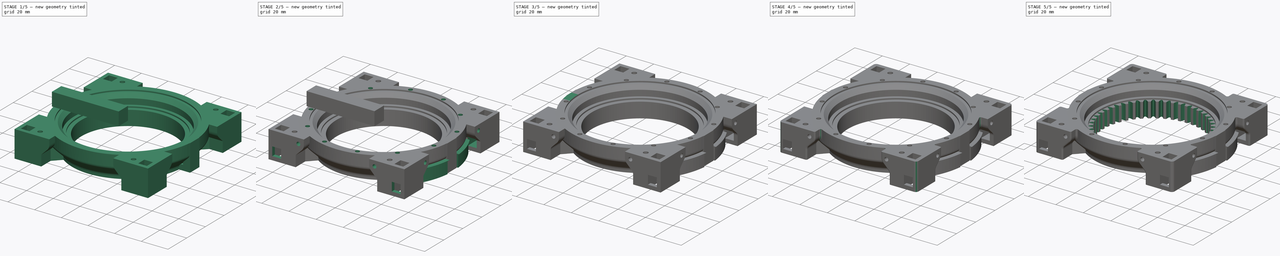
[diagram: build sequence overview — one tinted view per stage of 5, left to right]
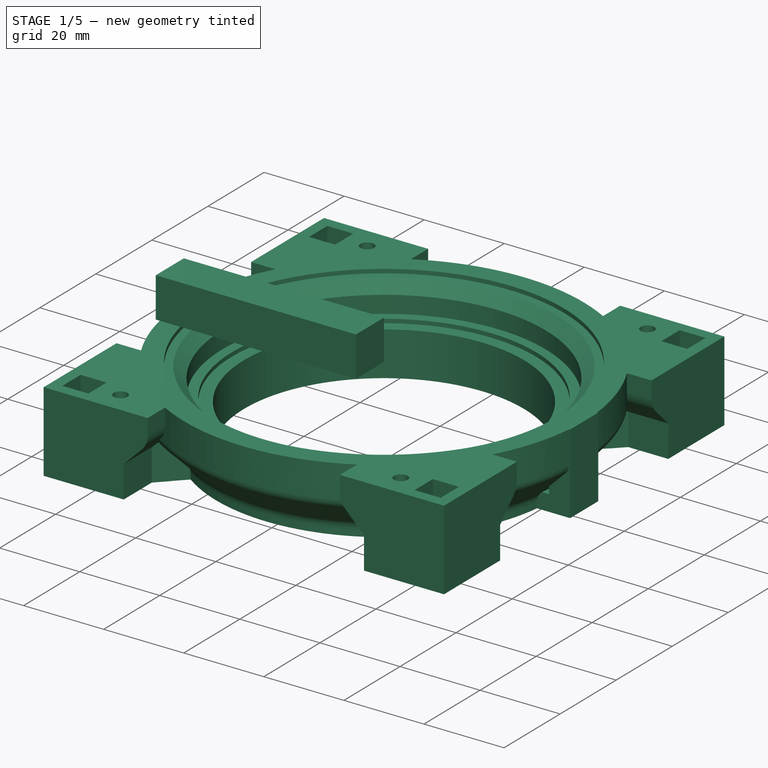
[diagram: stage 1 of 5 — iso view after this stage's code; geometry added in this stage tinted green]
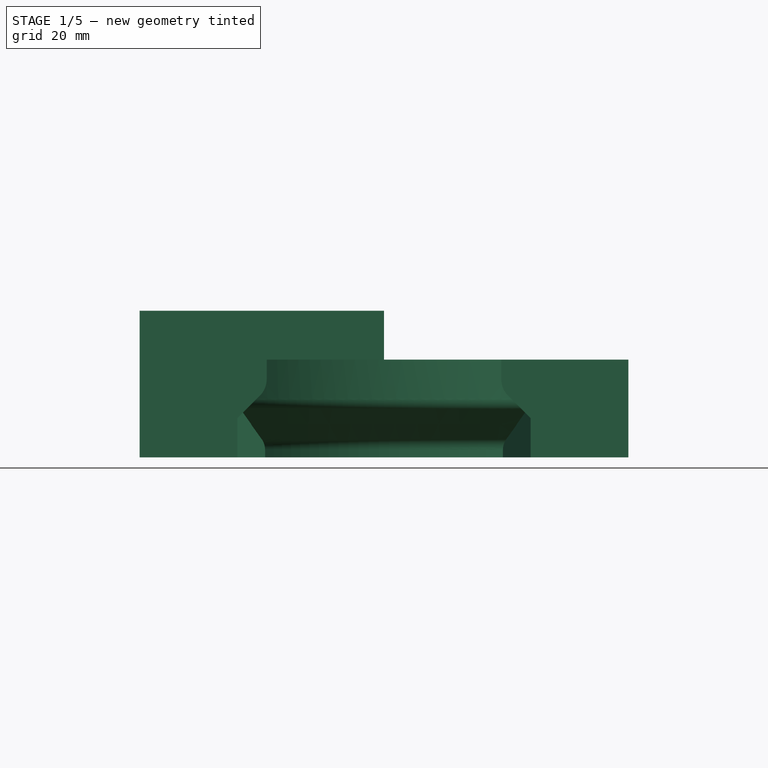
[diagram: stage 1 of 5 — front view after this stage's code; geometry added in this stage tinted green]
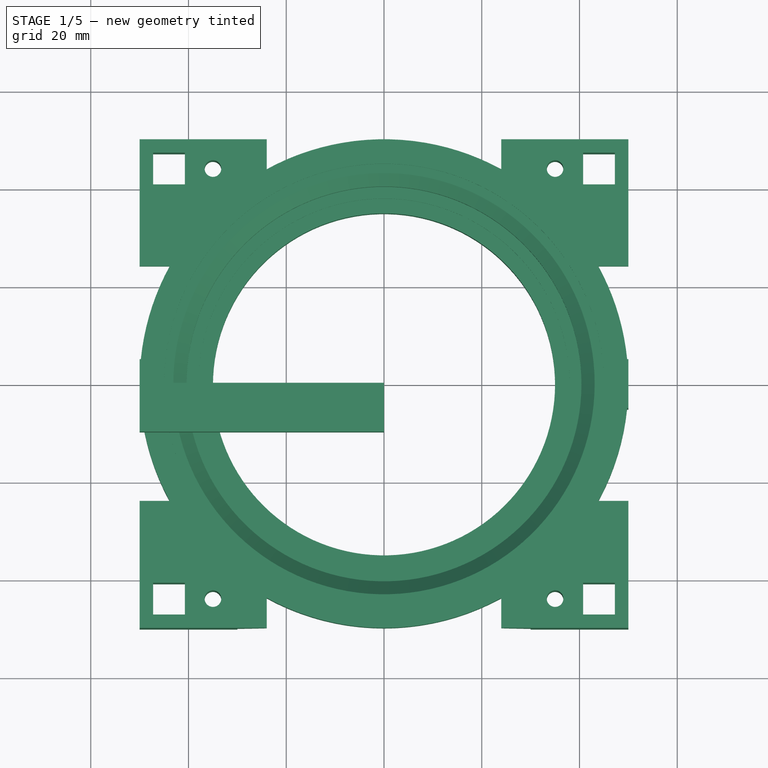
[diagram: stage 1 of 5 — top view after this stage's code; geometry added in this stage tinted green]
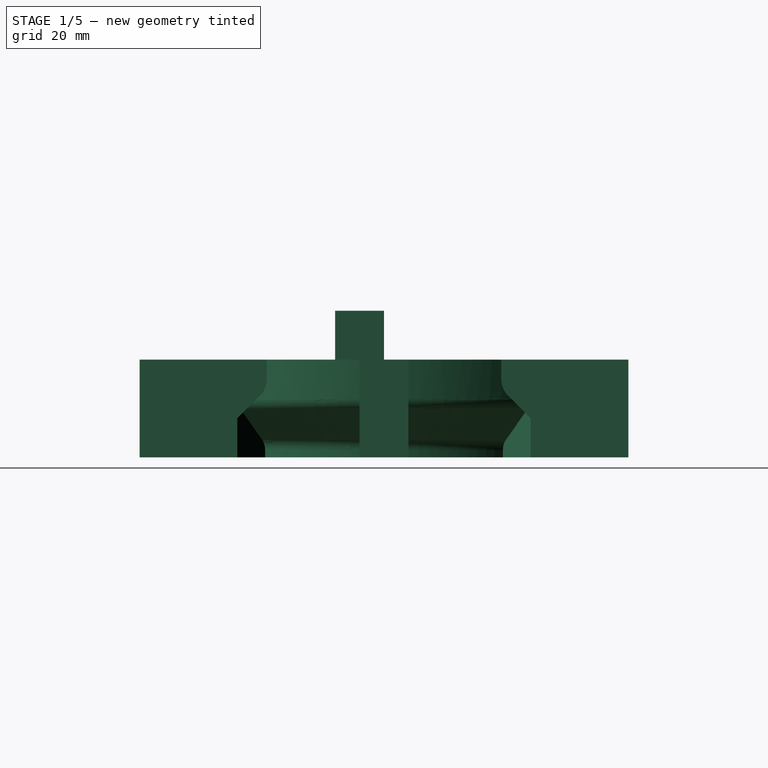
[diagram: stage 1 of 5 — right view after this stage's code; geometry added in this stage tinted green]
FCSTD DOCUMENT  (FreeCAD 0.16R6706 (Git))
Label: RingFixedV2_1
License: All rights reserved
LicenseURL: http://en.wikipedia.org/wiki/All_rights_reserved
objects: PartDesign::Fillet×28, Sketcher::SketchObject×16, PartDesign::Pad×10, PartDesign::PolarPattern×9, PartDesign::Pocket×6, PartDesign::Revolution×1, Part::Part2DObjectPython×1, PartDesign::Mirrored×1, Part::Cut×1
note: 90 computed .brp shape members not serialized (recipe doc carries the construction recipe); baked Part::Feature solids carry a one-line shape summary decoded from their .brp

FEATURE [Sketcher::SketchObject] Sketch013
  Placement = pos=(0,0,0) rot=(1,0,0;1.5708rad)
  sketch-geometry (35):
    g0: LineSegment StartX=35 StartY=9 StartZ=0 EndX=42 EndY=9 EndZ=0
    g1: LineSegment StartX=35 StartY=9 StartZ=0 EndX=35 EndY=20 EndZ=0
    g2: LineSegment StartX=42 StartY=9 StartZ=0 EndX=42 EndY=10.5 EndZ=0
    g3: LineSegment StartX=35 StartY=20 StartZ=0 EndX=38 EndY=20 EndZ=0
    g4: LineSegment StartX=38 StartY=20 StartZ=0 EndX=38 EndY=21 EndZ=0
    g5: LineSegment StartX=38 StartY=21 StartZ=0 EndX=40.4 EndY=21 EndZ=0
    g6: LineSegment StartX=42.8839 StartY=12.6339 StartZ=0 EndX=49.1161 EndY=18.8661 EndZ=0
    g7: LineSegment StartX=40.4 StartY=21 StartZ=0 EndX=40.4 EndY=25.2988 EndZ=0
    g8: LineSegment StartX=40.4 StartY=25.2988 StartZ=0 EndX=43.1012 EndY=28 EndZ=0
    g9: LineSegment StartX=45 StartY=29 StartZ=0 EndX=50 EndY=29 EndZ=0
    g10: LineSegment StartX=50 StartY=29 StartZ=0 EndX=50 EndY=21 EndZ=0
    g11: LineSegment StartX=43.1012 StartY=28 StartZ=0 EndX=45 EndY=28 EndZ=0
    g12: LineSegment StartX=45 StartY=28 StartZ=0 EndX=45 EndY=29 EndZ=0
    g13: Circle [constr] CenterX=40 CenterY=29 CenterZ=0 NormalX=0 NormalY=0 NormalZ=1 Radius=2.9
    g14: LineSegment [constr] StartX=40 StartY=29 StartZ=0 EndX=45 EndY=29 EndZ=0
    g15: Circle CenterX=43.4648 CenterY=25.5352 CenterZ=0 NormalX=0 NormalY=0 NormalZ=1 Radius=0.15
    g16: LineSegment [constr] StartX=42.0506 StartY=26.9494 StartZ=0 EndX=43.4648 EndY=25.5352 EndZ=0
    g17: Circle CenterX=39.5 CenterY=18.5 CenterZ=0 NormalX=0 NormalY=0 NormalZ=1 Radius=0.15
    g18: Circle CenterX=39.5 CenterY=17 CenterZ=0 NormalX=0 NormalY=0 NormalZ=1 Radius=0.15
    g19: Circle CenterX=39.5 CenterY=15.5 CenterZ=0 NormalX=0 NormalY=0 NormalZ=1 Radius=0.15
    g20: LineSegment [constr] StartX=39.5 StartY=21 StartZ=0 EndX=39.5 EndY=9 EndZ=0
    g21: Circle CenterX=39.5 CenterY=14 CenterZ=0 NormalX=0 NormalY=0 NormalZ=1 Radius=0.15
    g22: Circle CenterX=39.5 CenterY=12.5 CenterZ=0 NormalX=0 NormalY=0 NormalZ=1 Radius=0.15
    g23: LineSegment [constr] StartX=0 StartY=0 StartZ=0 EndX=0 EndY=29 EndZ=0
    g24: ArcOfCircle CenterX=46.9822 CenterY=21 CenterZ=0 NormalX=0 NormalY=0 NormalZ=1 Radius=3.01777 StartAngle=5.49779 EndAngle=6.28319
    g25: ArcOfCircle CenterX=45.0178 CenterY=10.5 CenterZ=0 NormalX=0 NormalY=0 NormalZ=1 Radius=3.01777 StartAngle=2.35619 EndAngle=3.14159
    g26: LineSegment [constr] StartX=44.6648 StartY=26.7352 StartZ=0 EndX=42.2648 EndY=24.3352 EndZ=0
    g27: Circle CenterX=42.2648 CenterY=24.3352 CenterZ=0 NormalX=0 NormalY=0 NormalZ=1 Radius=0.15
    g28: Circle CenterX=44.6648 CenterY=26.7352 CenterZ=0 NormalX=0 NormalY=0 NormalZ=1 Radius=0.15
    g29: Circle CenterX=39.5 CenterY=11 CenterZ=0 NormalX=0 NormalY=0 NormalZ=1 Radius=0.15
    g30: LineSegment [constr] StartX=46.05 StartY=30 StartZ=0 EndX=47.55 EndY=30 EndZ=0
    g31: LineSegment [constr] StartX=47.55 StartY=30 StartZ=0 EndX=47.55 EndY=19 EndZ=0
    g32: LineSegment [constr] StartX=47.55 StartY=19 StartZ=0 EndX=46.05 EndY=19 EndZ=0
    g33: LineSegment [constr] StartX=46.05 StartY=19 StartZ=0 EndX=46.05 EndY=30 EndZ=0
    g34: GeomPoint [constr] X=46.8 Y=30 Z=0
  constraints (105):
    c: Horizontal(g0)
    c: DistanceX(g-1,g0) = 42
    c: Vertical(g1)
    c: Coincident(g2,g0)
    c: Vertical(g2)
    c: Coincident(g3,g1)
    c: Horizontal(g3)
    c: Coincident(g4,g3)
    c: Vertical(g4)
    c: Coincident(g5,g4)
    c: Horizontal(g5)
    c: DistanceX(g-1,g1) = 35
    c: DistanceY(g4,g1) = -12
    c: DistanceY(g3,g4) = 1
    c: DistanceX(g-1,g3) = 38
    c: Coincident(g5,g7)
    c: Vertical(g7)
    c: Coincident(g7,g8)
    c: Horizontal(g9)
    c: Coincident(g10,g9)
    c: Vertical(g10)
    c: Coincident(g8,g11)
    c: Coincident(g11,g12)
    c: Coincident(g9,g12)
    c: Vertical(g12)
    c: Horizontal(g11)
    c: Radius(g13) = 2.9
    c: Tangent(g8,g13)
    c: Coincident(g14,g13)
    c: Horizontal(g14)
    c: Angle(g8,g14) = 2.35619
    c: DistanceX(g13,g7) = 0.4
    c: DistanceY(g8,g13) = 1
    c: Coincident(g9,g14)
    c: DistanceX(g-1,g11) = 45
    c: DistanceX(g-1,g13) = 40
    c: DistanceY(g4,g13) = 8
    c: DistanceX(g9,g9) = 5
    c: DistanceX(g8,g11) = 1.89878
    c: DistanceY(g0,g9) = 20
    c: Radius(g15) = 0.15
    c: PointOnObject(g16,g13)
    c: PointOnObject(g16,g8)
    c: Angle(g8,g16) = 1.5708
    c: Coincident(g15,g16)
    c: Distance(g16,g15) = 2
    c: Vertical(g20)
    c: PointOnObject(g17,g20)
    c: PointOnObject(g18,g20)
    c: PointOnObject(g19,g20)
    c: Radius(g17) = 0.15
    c: Equal(g17,g18)
    c: Equal(g17,g19)
    c: PointOnObject(g20,g0)
    c: DistanceY(g17,g3) = 1.5
    c: DistanceY(g18,g17) = 1.5
    c: DistanceY(g19,g18) = 1.5
    c: PointOnObject(g20,g5)
    c: DistanceX(g3,g20) = 1.5
    c: PointOnObject(g21,g20)
    c: PointOnObject(g22,g20)
    c: Radius(g21) = 0.15
    c: Radius(g22) = 0.15
    c: DistanceY(g21,g19) = 1.5
    c: DistanceY(g22,g21) = 1.5
    c: Coincident(g0,g1)
    c: DistanceY(g-1,g0) = 9
    c: Coincident(g23,g-1)
    c: Vertical(g23)
    c: DistanceY(g-1,g23) = 29
    c: Tangent(g10,g24) = 1.5708
    c: Tangent(g6,g24) = -1.5708
    c: DistanceX(g-1,g10) = 50
    c: DistanceY(g10,g9) = 8
    c: Tangent(g6,g25) = 1.5708
    c: Tangent(g2,g25) = 1.5708
    c: Angle(g6,g0) = 2.35619
    c: Equal(g25,g24)
    c: DistanceY(g0,g2) = 1.5
    c: DistanceY(g6,g10) = 2.13388
    c: Perpendicular(g16,g26)
    c: Symmetric(g26,g26,g15)
    c: Coincident(g27,g26)
    c: Coincident(g28,g26)
    c: Equal(g27,g15)
    c: Equal(g15,g28)
    c: DistanceY(g26,g15) = 1.2
    c: PointOnObject(g29,g20)
    c: Equal(g29,g22)
    c: DistanceY(g29,g22) = 1.5
    c: DistanceX(g26,g9) = 5.33518
    c: Coincident(g30,g31)
    c: Coincident(g31,g32)
    c: Coincident(g32,g33)
    c: Coincident(g33,g30)
    c: Horizontal(g30)
    c: Horizontal(g32)
    c: Vertical(g31)
    c: Vertical(g33)
    c: DistanceX(g30,g30) = 1.5
    c: DistanceY(g31,g9) = 10
    c: DistanceY(g9,g30) = 1
    c: Symmetric(g30,g30,g34)
    c: DistanceX(g-1,g34) = 46.8
    c: Distance(g31,g6) = 1.57183
FEATURE [PartDesign::Revolution] Revolution
  Angle = 360
  Axis = (0,0,1)
  Base = (0,0,0)
  Placement = pos=(0,0,0) rot=(1,0,0;1.5708rad)
  ReferenceAxis = -> Sketch013 [V_Axis]
  Reversed = true
  Sketch = -> Sketch013
FEATURE [Sketcher::SketchObject] Sketch036  label="RefBar"
  Placement = pos=(0,0,29) rot=(0,0,1;3.14159rad)
  Support = -> Revolution [Face12]
  sketch-geometry (4):
    g0: LineSegment StartX=0 StartY=10 StartZ=0 EndX=50 EndY=10 EndZ=0
    g1: LineSegment StartX=50 StartY=10 StartZ=0 EndX=50 EndY=0 EndZ=0
    g2: LineSegment StartX=50 StartY=0 StartZ=0 EndX=0 EndY=0 EndZ=0
    g3: LineSegment StartX=0 StartY=0 StartZ=0 EndX=0 EndY=10 EndZ=0
  constraints (12):
    c: Coincident(g0,g1)
    c: Coincident(g1,g2)
    c: Coincident(g2,g3)
    c: Coincident(g3,g0)
    c: Horizontal(g0)
    c: Horizontal(g2)
    c: Vertical(g1)
    c: Vertical(g3)
    c: PointOnObject(g0,g-2)
    c: PointOnObject(g1,g-1)
    c: DistanceX(g-1,g1) = 50
    c: DistanceY(g-1,g0) = 10
FEATURE [PartDesign::Pad] Pad
  Length = 10
  Length2 = 100
  Placement = pos=(0,0,0) rot=(1,0,0;1.5708rad)
  Sketch = -> Sketch036
  Type = 0
FEATURE [Sketcher::SketchObject] Sketch022  label="HorizontalMountPlane"
  Placement = pos=(0,0,29) rot=(0,0,1;3.14159rad)
  Support = -> Pad [Face9]
  sketch-geometry (66):
    g0: LineSegment [constr] StartX=30 StartY=-50 StartZ=0 EndX=-30 EndY=-50 EndZ=0
    g1: Circle [constr] CenterX=0 CenterY=0 CenterZ=0 NormalX=0 NormalY=0 NormalZ=1 Radius=50
    g2: LineSegment [constr] StartX=-44 StartY=44 StartZ=0 EndX=44 EndY=44 EndZ=0
    g3: LineSegment [constr] StartX=44 StartY=44 StartZ=0 EndX=44 EndY=-44 EndZ=0
    g4: LineSegment [constr] StartX=44 StartY=-44 StartZ=0 EndX=-44 EndY=-44 EndZ=0
    g5: LineSegment [constr] StartX=-44 StartY=-44 StartZ=0 EndX=-44 EndY=44 EndZ=0
    g6: LineSegment StartX=-47.25 StartY=47.25 StartZ=0 EndX=-40.75 EndY=47.25 EndZ=0
    g7: LineSegment StartX=-40.75 StartY=47.25 StartZ=0 EndX=-40.75 EndY=40.75 EndZ=0
    g8: LineSegment StartX=-40.75 StartY=40.75 StartZ=0 EndX=-47.25 EndY=40.75 EndZ=0
    g9: LineSegment StartX=-47.25 StartY=40.75 StartZ=0 EndX=-47.25 EndY=47.25 EndZ=0
    g10: LineSegment StartX=40.75 StartY=47.25 StartZ=0 EndX=47.25 EndY=47.25 EndZ=0
    g11: LineSegment StartX=47.25 StartY=47.25 StartZ=0 EndX=47.25 EndY=40.75 EndZ=0
    g12: LineSegment StartX=47.25 StartY=40.75 StartZ=0 EndX=40.75 EndY=40.75 EndZ=0
    g13: LineSegment StartX=40.75 StartY=40.75 StartZ=0 EndX=40.75 EndY=47.25 EndZ=0
    g14: LineSegment StartX=-47.25 StartY=-40.75 StartZ=0 EndX=-40.75 EndY=-40.75 EndZ=0
    g15: LineSegment StartX=-40.75 StartY=-40.75 StartZ=0 EndX=-40.75 EndY=-47.25 EndZ=0
    g16: LineSegment StartX=-40.75 StartY=-47.25 StartZ=0 EndX=-47.25 EndY=-47.25 EndZ=0
    g17: LineSegment StartX=-47.25 StartY=-47.25 StartZ=0 EndX=-47.25 EndY=-40.75 EndZ=0
    g18: LineSegment StartX=40.75 StartY=-40.75 StartZ=0 EndX=47.25 EndY=-40.75 EndZ=0
    g19: LineSegment StartX=47.25 StartY=-40.75 StartZ=0 EndX=47.25 EndY=-47.25 EndZ=0
    g20: LineSegment StartX=47.25 StartY=-47.25 StartZ=0 EndX=40.75 EndY=-47.25 EndZ=0
    g21: LineSegment StartX=40.75 StartY=-47.25 StartZ=0 EndX=40.75 EndY=-40.75 EndZ=0
    g22: LineSegment [constr] StartX=-47.25 StartY=40.75 StartZ=0 EndX=-47.25 EndY=-40.75 EndZ=0
    g23: LineSegment [constr] StartX=-40.75 StartY=47.25 StartZ=0 EndX=40.75 EndY=47.25 EndZ=0
    g24: LineSegment [constr] StartX=47.25 StartY=40.75 StartZ=0 EndX=47.25 EndY=-40.75 EndZ=0
    g25: Circle CenterX=-35 CenterY=44 CenterZ=0 NormalX=0 NormalY=0 NormalZ=1 Radius=1.7
    g26: Circle CenterX=-35 CenterY=-44 CenterZ=0 NormalX=0 NormalY=0 NormalZ=1 Radius=1.7
    g27: Circle CenterX=35 CenterY=-44 CenterZ=0 NormalX=0 NormalY=0 NormalZ=1 Radius=1.7
    g28: Circle CenterX=35 CenterY=44 CenterZ=0 NormalX=0 NormalY=0 NormalZ=1 Radius=1.7
    g29: LineSegment [constr] StartX=-35 StartY=44 StartZ=0 EndX=-35 EndY=-44 EndZ=0
    g30: LineSegment [constr] StartX=35 StartY=-44 StartZ=0 EndX=35 EndY=44 EndZ=0
    g31: LineSegment StartX=30 StartY=50 StartZ=0 EndX=30 EndY=40 EndZ=0
    g32: LineSegment StartX=40 StartY=30 StartZ=0 EndX=50 EndY=30 EndZ=0
    g33: LineSegment StartX=-30 StartY=50 StartZ=0 EndX=-30 EndY=40 EndZ=0
    g34: LineSegment StartX=-50 StartY=30 StartZ=0 EndX=-40 EndY=30 EndZ=0
    g35: LineSegment StartX=-50 StartY=-30 StartZ=0 EndX=-40 EndY=-30 EndZ=0
    g36: LineSegment StartX=-30 StartY=-40 StartZ=0 EndX=-30 EndY=-50 EndZ=0
    g37: LineSegment StartX=30 StartY=-40 StartZ=0 EndX=30 EndY=-50 EndZ=0
    g38: LineSegment StartX=40 StartY=-30 StartZ=0 EndX=50 EndY=-30 EndZ=0
    g39: LineSegment StartX=-50 StartY=-50 StartZ=0 EndX=-50 EndY=-30 EndZ=0
    g40: LineSegment StartX=-50 StartY=-50 StartZ=0 EndX=-30 EndY=-50 EndZ=0
    g41: LineSegment StartX=30 StartY=-50 StartZ=0 EndX=50 EndY=-50 EndZ=0
    g42: LineSegment StartX=50 StartY=-50 StartZ=0 EndX=50 EndY=-30 EndZ=0
    g43: LineSegment StartX=30 StartY=50 StartZ=0 EndX=50 EndY=50 EndZ=0
    g44: LineSegment StartX=50 StartY=50 StartZ=0 EndX=50 EndY=30 EndZ=0
    g45: LineSegment StartX=-50 StartY=50 StartZ=0 EndX=-30 EndY=50 EndZ=0
    g46: LineSegment StartX=-50 StartY=30 StartZ=0 EndX=-50 EndY=50 EndZ=0
    g47: LineSegment [constr] StartX=-30 StartY=50 StartZ=0 EndX=30 EndY=50 EndZ=0
    g48: LineSegment [constr] StartX=-50 StartY=30 StartZ=0 EndX=-50 EndY=-30 EndZ=0
    g49: LineSegment [constr] StartX=50 StartY=30 StartZ=0 EndX=50 EndY=-30 EndZ=0
    g50: ArcOfCircle CenterX=0 CenterY=0 CenterZ=0 NormalX=0 NormalY=0 NormalZ=1 Radius=46 StartAngle=0.631067 EndAngle=0.939729
    g51: ArcOfCircle CenterX=0 CenterY=0 CenterZ=0 NormalX=0 NormalY=0 NormalZ=1 Radius=46 StartAngle=2.20186 EndAngle=2.51053
    g52: ArcOfCircle CenterX=0 CenterY=0 CenterZ=0 NormalX=0 NormalY=0 NormalZ=1 Radius=46 StartAngle=3.77266 EndAngle=4.08132
    g53: ArcOfCircle CenterX=0 CenterY=0 CenterZ=0 NormalX=0 NormalY=0 NormalZ=1 Radius=46 StartAngle=5.34346 EndAngle=5.65212
    g54: LineSegment StartX=-30 StartY=40 StartZ=0 EndX=-27.1403 EndY=37.1403 EndZ=0
    g55: LineSegment StartX=-37.1403 StartY=27.1403 StartZ=0 EndX=-40 EndY=30 EndZ=0
    g56: LineSegment StartX=27.1403 StartY=37.1403 StartZ=0 EndX=30 EndY=40 EndZ=0
    g57: LineSegment StartX=37.1403 StartY=27.1403 StartZ=0 EndX=40 EndY=30 EndZ=0
    g58: LineSegment StartX=37.1403 StartY=-27.1403 StartZ=0 EndX=40 EndY=-30 EndZ=0
    g59: LineSegment StartX=27.1403 StartY=-37.1403 StartZ=0 EndX=30 EndY=-40 EndZ=0
    g60: LineSegment StartX=-40 StartY=-30 StartZ=0 EndX=-37.1403 EndY=-27.1403 EndZ=0
    g61: LineSegment StartX=-30 StartY=-40 StartZ=0 EndX=-27.1403 EndY=-37.1403 EndZ=0
    g62: LineSegment [constr] StartX=-27.1403 StartY=-37.1403 StartZ=0 EndX=37.1403 EndY=27.1403 EndZ=0
    g63: LineSegment [constr] StartX=-37.1403 StartY=-27.1403 StartZ=0 EndX=27.1403 EndY=37.1403 EndZ=0
    g64: LineSegment [constr] StartX=-37.1403 StartY=27.1403 StartZ=0 EndX=27.1403 EndY=-37.1403 EndZ=0
    g65: LineSegment [constr] StartX=37.1403 StartY=-27.1403 StartZ=0 EndX=-27.1403 EndY=37.1403 EndZ=0
  constraints (184):
    c: Horizontal(g0)
    c: Coincident(g1,g-1)
    c: Radius(g1) = 50
    c: Coincident(g2,g3)
    c: Coincident(g3,g4)
    c: Coincident(g4,g5)
    c: Coincident(g5,g2)
    c: Horizontal(g2)
    c: Horizontal(g4)
    c: Vertical(g3)
    c: Vertical(g5)
    c: Coincident(g6,g7)
    c: Coincident(g7,g8)
    c: Coincident(g8,g9)
    c: Coincident(g9,g6)
    c: Horizontal(g6)
    c: Horizontal(g8)
    c: Vertical(g7)
    c: Vertical(g9)
    c: Symmetric(g8,g6,g2)
    c: Equal(g9,g6)
    c: DistanceY(g8,g6) = 6.5
    c: Coincident(g10,g11)
    c: Coincident(g11,g12)
    c: Coincident(g12,g13)
    c: Coincident(g13,g10)
    c: Horizontal(g10)
    c: Horizontal(g12)
    c: Vertical(g11)
    c: Vertical(g13)
    c: Symmetric(g12,g10,g2)
    c: Equal(g11,g10)
    c: Coincident(g14,g15)
    c: Coincident(g15,g16)
    c: Coincident(g16,g17)
    c: Coincident(g17,g14)
    c: Horizontal(g14)
    c: Horizontal(g16)
    c: Vertical(g15)
    c: Vertical(g17)
    c: Coincident(g18,g19)
    c: Coincident(g19,g20)
    c: Coincident(g20,g21)
    c: Coincident(g21,g18)
    c: Horizontal(g18)
    c: Horizontal(g20)
    c: Vertical(g19)
    c: Vertical(g21)
    c: Symmetric(g18,g20,g3)
    c: Symmetric(g14,g15,g4)
    c: Equal(g14,g15)
    c: Equal(g18,g21)
    c: Coincident(g22,g8)
    c: Coincident(g22,g14)
    c: Vertical(g22)
    c: Coincident(g23,g6)
    c: Coincident(g23,g10)
    c: Horizontal(g23)
    c: Coincident(g24,g11)
    c: Coincident(g24,g18)
    c: Vertical(g24)
    c: Equal(g2,g5)
    c: DistanceY(g3,g2) = 88
    c: Symmetric(g7,g18,g-1)
    c: PointOnObject(g25,g2)
    c: PointOnObject(g26,g4)
    c: PointOnObject(g27,g4)
    c: PointOnObject(g28,g2)
    c: DistanceX(g2,g25) = 9
    c: Coincident(g29,g25)
    c: Vertical(g29)
    c: Coincident(g26,g29)
    c: Coincident(g30,g27)
    c: Coincident(g30,g28)
    c: Vertical(g30)
    c: Symmetric(g28,g25,g-2)
    c: DistanceX(g26,g27) = 70
    c: PointOnObject(g31,g1)
    c: Vertical(g31)
    c: PointOnObject(g32,g1)
    c: Horizontal(g32)
    c: PointOnObject(g33,g1)
    c: Vertical(g33)
    c: PointOnObject(g34,g1)
    c: Horizontal(g34)
    c: PointOnObject(g35,g1)
    c: Horizontal(g35)
    c: PointOnObject(g36,g1)
    c: PointOnObject(g40,g0)
    c: Vertical(g36)
    c: PointOnObject(g37,g1)
    c: PointOnObject(g41,g0)
    c: PointOnObject(g38,g1)
    c: Horizontal(g38)
    c: Coincident(g39,g35)
    c: Coincident(g40,g39)
    c: Coincident(g0,g36)
    c: Vertical(g37)
    c: Horizontal(g41)
    c: Vertical(g42)
    c: Coincident(g0,g37)
    c: Coincident(g43,g31)
    c: Horizontal(g43)
    c: Vertical(g44)
    c: Coincident(g45,g33)
    c: Horizontal(g45)
    c: Coincident(g46,g34)
    c: Vertical(g46)
    c: Coincident(g47,g33)
    c: Coincident(g47,g31)
    c: Horizontal(g47)
    c: Coincident(g48,g34)
    c: Coincident(g48,g35)
    c: Vertical(g48)
    c: DistanceY(g39,g45) = 100
    c: Equal(g46,g44)
    c: Equal(g44,g42)
    c: Equal(g42,g39)
    c: Coincident(g45,g46)
    c: Coincident(g43,g44)
    c: Equal(g45,g43)
    c: Coincident(g42,g38)
    c: Coincident(g49,g44)
    c: Vertical(g49)
    c: Coincident(g32,g44)
    c: Horizontal(g40)
    c: Equal(g40,g45)
    c: Equal(g45,g43)
    c: Equal(g43,g41)
    c: Coincident(g42,g41)
    c: Vertical(g39)
    c: Symmetric(g41,g45,g-1)
    c: Coincident(g38,g49)
    c: Equal(g47,g48)
    c: DistanceX(g45,g43) = 100
    c: Coincident(g0,g40)
    c: Coincident(g0,g41)
    c: DistanceX(g39,g0) = 20
    c: Radius(g26) = 1.7
    c: Equal(g26,g27)
    c: Equal(g26,g25)
    c: Equal(g26,g28)
    c: Coincident(g50,g-1)
    c: Coincident(g51,g-1)
    c: Coincident(g52,g-1)
    c: Coincident(g53,g-1)
    c: Coincident(g54,g33)
    c: Coincident(g54,g51)
    c: Coincident(g55,g51)
    c: Coincident(g55,g34)
    c: Coincident(g56,g31)
    c: Coincident(g57,g50)
    c: Coincident(g57,g32)
    c: Coincident(g58,g53)
    c: Coincident(g58,g38)
    c: Coincident(g59,g53)
    c: Coincident(g59,g37)
    c: Coincident(g60,g35)
    c: Coincident(g60,g52)
    c: Coincident(g61,g36)
    c: Coincident(g61,g52)
    c: Coincident(g56,g50)
    c: Radius(g52) = 46
    c: Equal(g52,g51)
    c: Equal(g52,g50)
    c: Equal(g52,g53)
    c: Coincident(g62,g52)
    c: Coincident(g62,g50)
    c: Coincident(g63,g52)
    c: Coincident(g63,g50)
    c: Angle(g4,g62) = 0.785398
    c: Equal(g63,g62)
    c: Coincident(g64,g51)
    c: Coincident(g64,g53)
    c: Coincident(g65,g53)
    c: Coincident(g65,g51)
    c: Angle(g4,g61) = 0.785398
    c: Equal(g62,g63)
    c: Angle(g60) = 0.785398
    c: Angle(g5,g55) = 0.785398
    c: Angle(g5,g54) = 0.785398
    c: Angle(g59,g4) = 0.785398
    c: Angle(g58,g4) = 0.785398
    c: Distance(g60) = 4.0442
FEATURE [PartDesign::Pad] Pad014
  Length = 20
  Length2 = 100
  Placement = pos=(0,0,0) rot=(1,0,0;1.5708rad)
  Reversed = true
  Sketch = -> Sketch022
  Type = 0
FEATURE [Sketcher::SketchObject] Sketch041  label="BottomPadMounts"
  Placement = pos=(0,0,9) rot=(1,0,0;3.14159rad)
  Support = -> Pad014 [Face62]
  sketch-geometry (9):
    g0: LineSegment StartX=-38.1838 StartY=-28.2843 StartZ=0 EndX=-33.9411 EndY=-24.0416 EndZ=0
    g1: LineSegment StartX=-33.9411 StartY=-24.0416 StartZ=0 EndX=-24.0416 EndY=-33.9411 EndZ=0
    g2: LineSegment StartX=-24.0416 StartY=-33.9411 StartZ=0 EndX=-28.2843 EndY=-38.1838 EndZ=0
    g3: LineSegment StartX=-28.2843 StartY=-38.1838 StartZ=0 EndX=-38.1838 EndY=-28.2843 EndZ=0
    g4: LineSegment [constr] StartX=0 StartY=0 StartZ=0 EndX=-31.1127 EndY=-31.1127 EndZ=0
    g5: LineSegment [constr] StartX=-46.5 StartY=5 StartZ=0 EndX=-41.5 EndY=5 EndZ=0
    g6: LineSegment [constr] StartX=-41.5 StartY=5 StartZ=0 EndX=-41.5 EndY=-5 EndZ=0
    g7: LineSegment [constr] StartX=-41.5 StartY=-5 StartZ=0 EndX=-46.5 EndY=-5 EndZ=0
    g8: LineSegment [constr] StartX=-46.5 StartY=-5 StartZ=0 EndX=-46.5 EndY=5 EndZ=0
  constraints (26):
    c: Coincident(g0,g1)
    c: Coincident(g1,g2)
    c: Coincident(g2,g3)
    c: Coincident(g3,g0)
    c: Equal(g0,g2)
    c: Parallel(g0,g2)
    c: Perpendicular(g0,g3)
    c: Distance(g0,g1) = 14
    c: Coincident(g4,g-1)
    c: Symmetric(g0,g2,g4)
    c: Perpendicular(g1,g4)
    c: Angle(g4,g-1) = 2.35619
    c: Distance(g-1,g4) = 44
    c: Distance(g1,g2) = 6
    c: Coincident(g5,g6)
    c: Coincident(g6,g7)
    c: Coincident(g7,g8)
    c: Coincident(g8,g5)
    c: Horizontal(g5)
    c: Horizontal(g7)
    c: Vertical(g6)
    c: Vertical(g8)
    c: Symmetric(g7,g5,g-1)
    c: DistanceX(g7,g6) = 5
    c: DistanceY(g7,g5) = 10
    c: DistanceX(g5,g-1) = 41.5
FEATURE [PartDesign::Pad] Pad015
  Length = 7
  Length2 = 100
  Placement = pos=(0,0,0) rot=(1,0,0;1.5708rad)
  Reversed = true
  Sketch = -> Sketch041
  Type = 0
FEATURE [PartDesign::PolarPattern] PolarPattern006
  Angle = 360
  Axis = -> Sketch041 [N_Axis]
  Occurrences = 4
  Originals = -> [Pad015]
  Placement = pos=(0,0,0) rot=(1,0,0;1.5708rad)
FEATURE [Sketcher::SketchObject] Sketch034  label="MidRodHolder"
  Placement = pos=(0,0,29) rot=(0,0,1;3.14159rad)
  Support = -> PolarPattern006 [Face9]
  sketch-geometry (4):
    g0: LineSegment StartX=-50 StartY=5 StartZ=0 EndX=-44.7214 EndY=5 EndZ=0
    g1: LineSegment StartX=-44.7214 StartY=-5 StartZ=0 EndX=-50 EndY=-5 EndZ=0
    g2: LineSegment StartX=-50 StartY=-5 StartZ=0 EndX=-50 EndY=5 EndZ=0
    g3: ArcOfCircle CenterX=0 CenterY=0 CenterZ=0 NormalX=0 NormalY=0 NormalZ=1 Radius=45 StartAngle=3.03025 EndAngle=3.25293
  constraints (12):
    c: Coincident(g1,g2)
    c: Coincident(g2,g0)
    c: Horizontal(g0)
    c: Horizontal(g1)
    c: Vertical(g2)
    c: Coincident(g3,g-1)
    c: Coincident(g3,g0)
    c: Coincident(g1,g3)
    c: Radius(g3) = 45
    c: DistanceX(g1,g-1) = 50
    c: Symmetric(g1,g0,g-1)
    c: DistanceY(g1,g0) = 10
FEATURE [PartDesign::Pad] Pad016
  Length = 20
  Length2 = 100
  Placement = pos=(0,0,0) rot=(1,0,0;1.5708rad)
  Reversed = true
  Sketch = -> Sketch034
  Type = 0
FEATURE [PartDesign::PolarPattern] PolarPattern
  Angle = 360
  Axis = -> Sketch034 [N_Axis]
  Occurrences = 2
  Originals = -> [Pad016]
  Placement = pos=(0,0,0) rot=(1,0,0;1.5708rad)
FEATURE [Sketcher::SketchObject] Sketch042  label="BottomPadMidRodHolder"
  Placement = pos=(0,0,9) rot=(1,0,0;3.14159rad)
  Support = -> PolarPattern [Face94]
  sketch-geometry (4):
    g0: LineSegment StartX=-46.1977 StartY=5 StartZ=0 EndX=-41.1977 EndY=5 EndZ=0
    g1: LineSegment StartX=-41.1977 StartY=-5 StartZ=0 EndX=-46.1977 EndY=-5 EndZ=0
    g2: LineSegment StartX=-46.1977 StartY=-5 StartZ=0 EndX=-46.1977 EndY=5 EndZ=0
    g3: ArcOfCircle CenterX=0 CenterY=0 CenterZ=0 NormalX=0 NormalY=0 NormalZ=1 Radius=41.5 StartAngle=3.02082 EndAngle=3.26237
  constraints (12):
    c: Coincident(g1,g2)
    c: Coincident(g2,g0)
    c: Horizontal(g0)
    c: Horizontal(g1)
    c: Vertical(g2)
    c: Coincident(g3,g-1)
    c: Coincident(g3,g0)
    c: Coincident(g3,g1)
    c: Radius(g3) = 41.5
    c: DistanceX(g1,g1) = 5
    c: Symmetric(g1,g0,g-1)
    c: DistanceY(g1,g0) = 10
FEATURE [PartDesign::Pad] Pad017
  Length = 4
  Length2 = 100
  Placement = pos=(0,0,0) rot=(1,0,0;1.5708rad)
  Reversed = true
  Sketch = -> Sketch042
  Type = 0
FEATURE [PartDesign::PolarPattern] PolarPattern001
  Angle = 360
  Axis = -> Sketch042 [N_Axis]
  Occurrences = 2
  Originals = -> [Pad017]
  Placement = pos=(0,0,0) rot=(1,0,0;1.5708rad)
FEATURE [Sketcher::SketchObject] Sketch035  label="SideExtension"
  Placement = pos=(0,-50,0) rot=(1,0,0;1.5708rad)
  Support = -> PolarPattern001 [Face116]
  sketch-geometry (10):
    g0: LineSegment StartX=-30 StartY=29 StartZ=0 EndX=-24 EndY=29 EndZ=0
    g1: LineSegment StartX=-24 StartY=29 StartZ=0 EndX=-24 EndY=25 EndZ=0
    g2: LineSegment StartX=-30 StartY=17 StartZ=0 EndX=-30 EndY=29 EndZ=0
    g3: LineSegment StartX=-25.4142 StartY=21.5858 StartZ=0 EndX=-30 EndY=17 EndZ=0
    g4: LineSegment StartX=30 StartY=29 StartZ=0 EndX=24 EndY=29 EndZ=0
    g5: LineSegment StartX=24 StartY=29 StartZ=0 EndX=24 EndY=25 EndZ=0
    g6: LineSegment StartX=30 StartY=17 StartZ=0 EndX=30 EndY=29 EndZ=0
    g7: LineSegment StartX=25.4142 StartY=21.5858 StartZ=0 EndX=30 EndY=17 EndZ=0
    g8: ArcOfCircle CenterX=-28.8284 CenterY=25 CenterZ=0 NormalX=0 NormalY=0 NormalZ=1 Radius=4.82843 StartAngle=5.49779 EndAngle=6.28319
    g9: ArcOfCircle CenterX=28.8284 CenterY=25 CenterZ=0 NormalX=0 NormalY=0 NormalZ=1 Radius=4.82843 StartAngle=3.14159 EndAngle=3.92699
  constraints (26):
    c: Coincident(g0,g1)
    c: Coincident(g2,g0)
    c: Horizontal(g0)
    c: Vertical(g1)
    c: Vertical(g2)
    c: DistanceY(g-1,g0) = 29
    c: DistanceX(g2,g-1) = 30
    c: Coincident(g3,g2)
    c: Angle(g3,g2) = 0.785398
    c: DistanceX(g0,g0) = 6
    c: Coincident(g4,g5)
    c: Coincident(g6,g4)
    c: Horizontal(g4)
    c: Vertical(g5)
    c: Vertical(g6)
    c: Coincident(g7,g6)
    c: Angle(g6,g7) = 0.785398
    c: Symmetric(g2,g6,g-2)
    c: Symmetric(g0,g4,g-2)
    c: Tangent(g1,g8) = 1.5708
    c: Tangent(g3,g8) = 1.5708
    c: Tangent(g7,g9) = -1.5708
    c: Tangent(g5,g9) = -1.5708
    c: DistanceY(g8,g0) = 4
    c: DistanceY(g9,g4) = 4
    c: DistanceY(g-1,g2) = 17
FEATURE [PartDesign::Pad] Pad018
  Length = 11
  Length2 = 100
  Placement = pos=(0,0,0) rot=(1,0,0;1.5708rad)
  Reversed = true
  Sketch = -> Sketch035
  Type = 0
FEATURE [PartDesign::PolarPattern] PolarPattern002
  Angle = 360
  Axis = -> Pad018 [Edge118]
  Occurrences = 4
  Originals = -> [Pad018]
  Placement = pos=(0,0,0) rot=(1,0,0;1.5708rad)
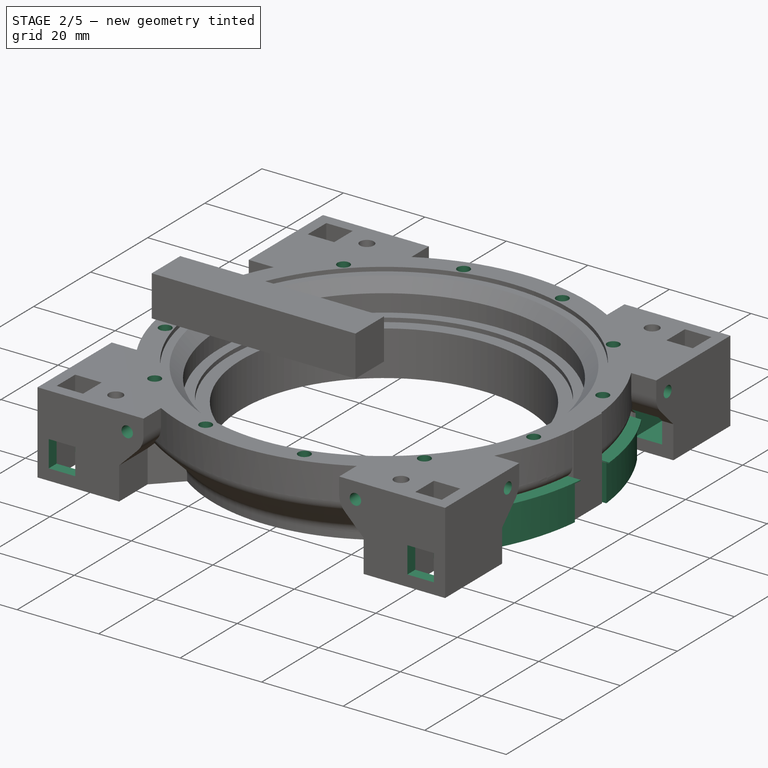
[diagram: stage 2 of 5 — iso view after this stage's code; geometry added in this stage tinted green]
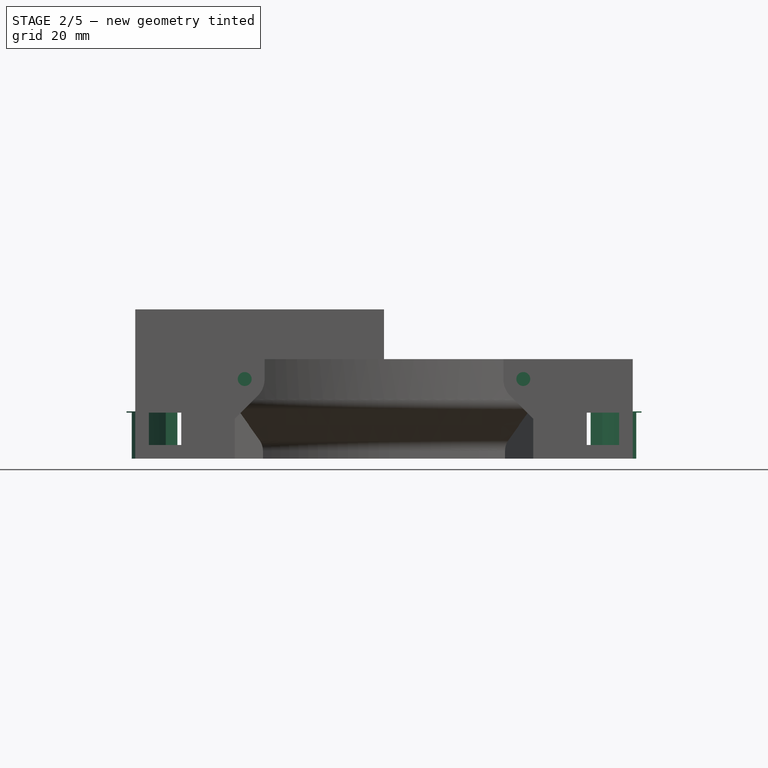
[diagram: stage 2 of 5 — front view after this stage's code; geometry added in this stage tinted green]
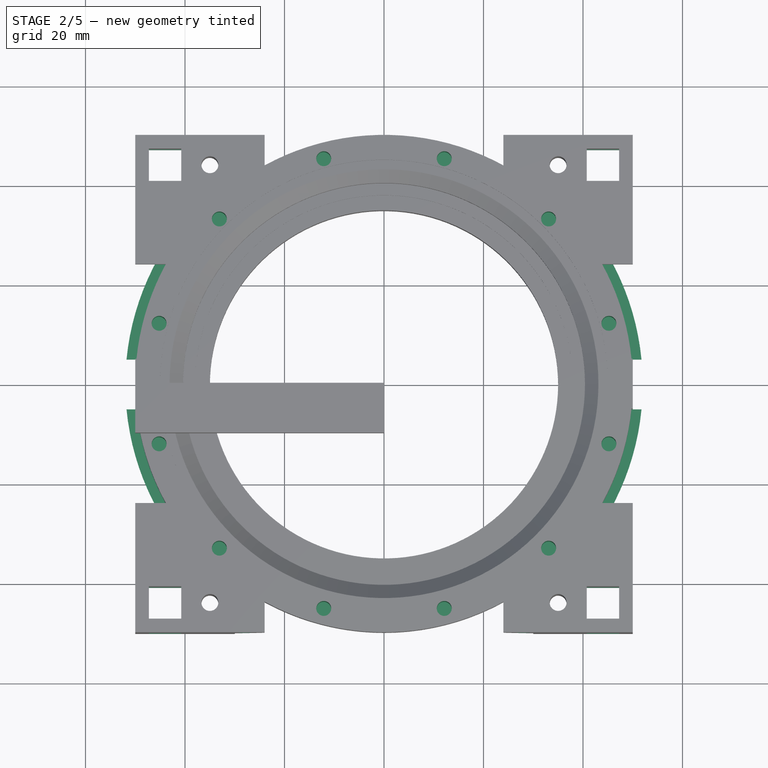
[diagram: stage 2 of 5 — top view after this stage's code; geometry added in this stage tinted green]
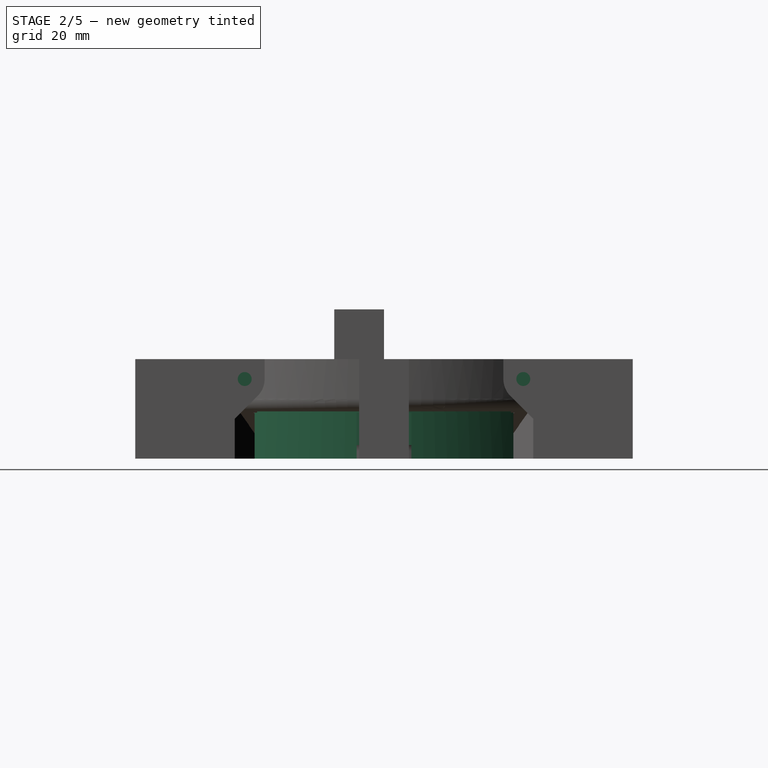
[diagram: stage 2 of 5 — right view after this stage's code; geometry added in this stage tinted green]
FEATURE [Sketcher::SketchObject] Sketch025  label="SideScrewHoles"
  Placement = pos=(0,-50,0) rot=(1,0,0;1.5708rad)
  Support = -> PolarPattern002 [Face160]
  sketch-geometry (5):
    g0: Circle CenterX=28 CenterY=25 CenterZ=0 NormalX=0 NormalY=0 NormalZ=1 Radius=1.4
    g1: Circle CenterX=-28 CenterY=25 CenterZ=0 NormalX=0 NormalY=0 NormalZ=1 Radius=1.4
    g2: LineSegment [constr] StartX=-28 StartY=25 StartZ=0 EndX=28 EndY=25 EndZ=0
    g3: Circle [constr] CenterX=-20 CenterY=25 CenterZ=0 NormalX=0 NormalY=0 NormalZ=1 Radius=1.4
    g4: Circle [constr] CenterX=20 CenterY=25 CenterZ=0 NormalX=0 NormalY=0 NormalZ=1 Radius=1.4
  constraints (13):
    c: Coincident(g2,g1)
    c: Coincident(g2,g0)
    c: Radius(g0) = 1.4
    c: Equal(g0,g1)
    c: DistanceX(g1,g0) = 56
    c: DistanceY(g-1,g1) = 25
    c: PointOnObject(g3,g2)
    c: Radius(g3) = 1.4
    c: PointOnObject(g4,g2)
    c: Radius(g4) = 1.4
    c: Symmetric(g1,g0,g-2)
    c: Symmetric(g3,g4,g-2)
    c: DistanceX(g3,g4) = 40
FEATURE [PartDesign::Pocket] Pocket
  Length = 11
  Placement = pos=(0,0,0) rot=(1,0,0;1.5708rad)
  Sketch = -> Sketch025
  Type = 0
FEATURE [PartDesign::PolarPattern] PolarPattern003
  Angle = 360
  Axis = -> Pocket [Edge142]
  Occurrences = 4
  Originals = -> [Pocket]
  Placement = pos=(0,0,0) rot=(1,0,0;1.5708rad)
FEATURE [Sketcher::SketchObject] Sketch  label="BearingScrewHoles"
  Placement = pos=(0,0,29) rot=(0,0,1;3.14159rad)
  Support = -> PolarPattern003 [Face14]
  sketch-geometry (2):
    g0: Circle CenterX=45.2053 CenterY=12.1127 CenterZ=0 NormalX=0 NormalY=0 NormalZ=1 Radius=1.5
    g1: LineSegment [constr] StartX=0 StartY=0 StartZ=0 EndX=45.2053 EndY=12.1127 EndZ=0
  constraints (5):
    c: Radius(g0) = 1.5
    c: Coincident(g1,g-1)
    c: Coincident(g1,g0)
    c: Distance(g-1,g0) = 46.8
    c: Angle(g-1,g1) = 0.261799
FEATURE [PartDesign::Pocket] Pocket001
  Length = 10.5
  Placement = pos=(0,0,0) rot=(1,0,0;1.5708rad)
  Sketch = -> Sketch
  Type = 0
FEATURE [PartDesign::PolarPattern] PolarPattern004
  Angle = 360
  Axis = -> Sketch [N_Axis]
  Occurrences = 12
  Originals = -> [Pocket001]
  Placement = pos=(0,0,0) rot=(1,0,0;1.5708rad)
FEATURE [Sketcher::SketchObject] Sketch024  label="VerticalMountPlane"
  Placement = pos=(0,-50,0) rot=(1,0,0;1.5708rad)
  Support = -> PolarPattern004 [Face188]
  sketch-geometry (10):
    g0: LineSegment StartX=-47.25 StartY=18.25 StartZ=0 EndX=-40.75 EndY=18.25 EndZ=0
    g1: LineSegment StartX=-40.75 StartY=18.25 StartZ=0 EndX=-40.75 EndY=11.75 EndZ=0
    g2: LineSegment StartX=-40.75 StartY=11.75 StartZ=0 EndX=-47.25 EndY=11.75 EndZ=0
    g3: LineSegment StartX=-47.25 StartY=11.75 StartZ=0 EndX=-47.25 EndY=18.25 EndZ=0
    g4: LineSegment StartX=40.75 StartY=18.25 StartZ=0 EndX=47.25 EndY=18.25 EndZ=0
    g5: LineSegment StartX=47.25 StartY=18.25 StartZ=0 EndX=47.25 EndY=11.75 EndZ=0
    g6: LineSegment StartX=47.25 StartY=11.75 StartZ=0 EndX=40.75 EndY=11.75 EndZ=0
    g7: LineSegment StartX=40.75 StartY=11.75 StartZ=0 EndX=40.75 EndY=18.25 EndZ=0
    g8: GeomPoint [constr] X=-44 Y=15 Z=0
    g9: GeomPoint [constr] X=44 Y=15 Z=0
  constraints (25):
    c: Coincident(g0,g1)
    c: Coincident(g1,g2)
    c: Coincident(g2,g3)
    c: Coincident(g3,g0)
    c: Horizontal(g0)
    c: Horizontal(g2)
    c: Vertical(g1)
    c: Vertical(g3)
    c: Coincident(g4,g5)
    c: Coincident(g5,g6)
    c: Coincident(g6,g7)
    c: Coincident(g7,g4)
    c: Horizontal(g4)
    c: Horizontal(g6)
    c: Vertical(g5)
    c: Vertical(g7)
    c: Symmetric(g1,g6,g-2)
    c: Symmetric(g0,g4,g-2)
    c: Equal(g1,g2)
    c: DistanceX(g2,g1) = 6.5
    c: Symmetric(g2,g0,g8)
    c: Symmetric(g4,g6,g9)
    c: DistanceX(g8,g9) = 88
    c: DistanceY(g-1,g8) = 15
    c: DistanceY(g-1,g0) = 18.25
FEATURE [PartDesign::Pocket] Pocket002
  Length = 110
  Placement = pos=(0,0,0) rot=(1,0,0;1.5708rad)
  Sketch = -> Sketch024
  Type = 0
FEATURE [Sketcher::SketchObject] Sketch044  label="CleanSide"
  Placement = pos=(50,0,0) rot=(0.707107,0,0.707107;3.14159rad)
  Support = -> Pocket002 [Face67]
  sketch-geometry (8):
    g0: LineSegment StartX=14 StartY=-5 StartZ=0 EndX=18.25 EndY=-5 EndZ=0
    g1: LineSegment StartX=18.25 StartY=-5 StartZ=0 EndX=18.25 EndY=-11.5 EndZ=0
    g2: LineSegment StartX=18.25 StartY=-11.5 StartZ=0 EndX=14 EndY=-11.5 EndZ=0
    g3: LineSegment StartX=14 StartY=-11.5 StartZ=0 EndX=14 EndY=-5 EndZ=0
    g4: LineSegment StartX=14 StartY=11.5 StartZ=0 EndX=18.25 EndY=11.5 EndZ=0
    g5: LineSegment StartX=18.25 StartY=11.5 StartZ=0 EndX=18.25 EndY=5 EndZ=0
    g6: LineSegment StartX=18.25 StartY=5 StartZ=0 EndX=14 EndY=5 EndZ=0
    g7: LineSegment StartX=14 StartY=5 StartZ=0 EndX=14 EndY=11.5 EndZ=0
  constraints (22):
    c: Coincident(g0,g1)
    c: Coincident(g1,g2)
    c: Coincident(g2,g3)
    c: Coincident(g3,g0)
    c: Horizontal(g0)
    c: Horizontal(g2)
    c: Vertical(g1)
    c: Vertical(g3)
    c: Coincident(g4,g5)
    c: Coincident(g5,g6)
    c: Coincident(g6,g7)
    c: Coincident(g7,g4)
    c: Horizontal(g4)
    c: Horizontal(g6)
    c: Vertical(g5)
    c: Vertical(g7)
    c: Symmetric(g0,g5,g-1)
    c: Symmetric(g2,g4,g-1)
    c: DistanceY(g0,g6) = 10
    c: DistanceX(g-1,g0) = 18.25
    c: DistanceY(g1,g4) = 23
    c: DistanceX(g-1,g0) = 14
FEATURE [PartDesign::Pocket] Pocket003
  Length = 5
  Placement = pos=(0,0,0) rot=(1,0,0;1.5708rad)
  Sketch = -> Sketch044
  Type = 0
FEATURE [PartDesign::PolarPattern] PolarPattern005
  Angle = 360
  Axis = -> Pocket003 [Edge174]
  Occurrences = 2
  Originals = -> [Pocket003]
  Placement = pos=(0,0,0) rot=(1,0,0;1.5708rad)
FEATURE [Sketcher::SketchObject] Sketch038  label="Suport WIngs"
  Placement = pos=(0,0,18.25) rot=(1,0,0;3.14159rad)
  Support = -> PolarPattern005 [Face302]
  sketch-geometry (8):
    g0: ArcOfCircle CenterX=0 CenterY=0 CenterZ=0 NormalX=0 NormalY=0 NormalZ=1 Radius=47 StartAngle=2.56812 EndAngle=3.03479
    g1: ArcOfCircle CenterX=0 CenterY=0 CenterZ=0 NormalX=0 NormalY=0 NormalZ=1 Radius=52 StartAngle=2.62906 EndAngle=3.0451
    g2: LineSegment StartX=-51.7581 StartY=5.01 StartZ=0 EndX=-46.7322 EndY=5.01 EndZ=0
    g3: LineSegment StartX=-39.481 StartY=25.5 StartZ=0 EndX=-45.3183 EndY=25.5 EndZ=0
    g4: ArcOfCircle CenterX=0 CenterY=0 CenterZ=0 NormalX=0 NormalY=0 NormalZ=1 Radius=47 StartAngle=0.106799 EndAngle=0.573474
    g5: ArcOfCircle CenterX=0 CenterY=0 CenterZ=0 NormalX=0 NormalY=0 NormalZ=1 Radius=52 StartAngle=0.0964958 EndAngle=0.512531
    g6: LineSegment StartX=51.7581 StartY=5.01 StartZ=0 EndX=46.7322 EndY=5.01 EndZ=0
    g7: LineSegment StartX=39.481 StartY=25.5 StartZ=0 EndX=45.3183 EndY=25.5 EndZ=0
  constraints (23):
    c: Coincident(g0,g-1)
    c: Coincident(g1,g-1)
    c: Radius(g1) = 52
    c: Radius(g0) = 47
    c: Coincident(g2,g1)
    c: Coincident(g2,g0)
    c: Coincident(g3,g1)
    c: Horizontal(g3)
    c: Horizontal(g2)
    c: Coincident(g3,g0)
    c: DistanceY(g-1,g1) = 25.5
    c: DistanceY(g-1,g0) = 5.01
    c: Radius(g4) = 47
    c: Coincident(g6,g5)
    c: Coincident(g6,g4)
    c: Coincident(g7,g5)
    c: Horizontal(g7)
    c: Horizontal(g6)
    c: Coincident(g7,g4)
    c: Coincident(g4,g5)
    c: Coincident(g-1,g4)
    c: Symmetric(g4,g0,g-2)
    c: Symmetric(g5,g1,g-2)
FEATURE [PartDesign::Pad] Pad019
  Length = 0.25
  Length2 = 100
  Placement = pos=(0,0,0) rot=(1,0,0;1.5708rad)
  Reversed = true
  Sketch = -> Sketch038
  Type = 0
FEATURE [PartDesign::Mirrored] Mirrored
  MirrorPlane = -> Sketch038 [H_Axis]
  Originals = -> [Pad019]
  Placement = pos=(0,0,0) rot=(1,0,0;1.5708rad)
FEATURE [Sketcher::SketchObject] Sketch037  label="Support Columns"
  Placement = pos=(0,0,18.25) rot=(1,0,0;3.14159rad)
  Support = -> Mirrored [Face370]
  sketch-geometry (16):
    g0: ArcOfCircle CenterX=0 CenterY=0 CenterZ=0 NormalX=0 NormalY=0 NormalZ=1 Radius=49 StartAngle=2.58227 EndAngle=3.02911
    g1: ArcOfCircle CenterX=0 CenterY=0 CenterZ=0 NormalX=0 NormalY=0 NormalZ=1 Radius=51 StartAngle=2.60664 EndAngle=3.03354
    g2: LineSegment StartX=-43.8748 StartY=26 StartZ=0 EndX=-41.5331 EndY=26 EndZ=0
    g3: LineSegment StartX=-50.7026 StartY=5.5 StartZ=0 EndX=-48.6903 EndY=5.5 EndZ=0
    g4: ArcOfCircle CenterX=0 CenterY=0 CenterZ=0 NormalX=0 NormalY=0 NormalZ=1 Radius=49 StartAngle=0.112482 EndAngle=0.559323
    g5: ArcOfCircle CenterX=0 CenterY=0 CenterZ=0 NormalX=0 NormalY=0 NormalZ=1 Radius=51 StartAngle=0.108053 EndAngle=0.534957
    g6: LineSegment StartX=43.8748 StartY=26 StartZ=0 EndX=41.5331 EndY=26 EndZ=0
    g7: LineSegment StartX=50.7026 StartY=5.5 StartZ=0 EndX=48.6903 EndY=5.5 EndZ=0
    g8: ArcOfCircle CenterX=0 CenterY=0 CenterZ=0 NormalX=0 NormalY=0 NormalZ=1 Radius=49 StartAngle=3.25407 EndAngle=3.70092
    g9: ArcOfCircle CenterX=0 CenterY=0 CenterZ=0 NormalX=0 NormalY=0 NormalZ=1 Radius=51 StartAngle=3.24965 EndAngle=3.67655
    g10: LineSegment StartX=-43.8748 StartY=-26 StartZ=0 EndX=-41.5331 EndY=-26 EndZ=0
    g11: LineSegment StartX=-50.7026 StartY=-5.5 StartZ=0 EndX=-48.6903 EndY=-5.5 EndZ=0
    g12: ArcOfCircle CenterX=0 CenterY=0 CenterZ=0 NormalX=0 NormalY=0 NormalZ=1 Radius=49 StartAngle=5.72386 EndAngle=6.1707
    g13: ArcOfCircle CenterX=0 CenterY=0 CenterZ=0 NormalX=0 NormalY=0 NormalZ=1 Radius=51 StartAngle=5.74823 EndAngle=6.17513
    g14: LineSegment StartX=43.8748 StartY=-26 StartZ=0 EndX=41.5331 EndY=-26 EndZ=0
    g15: LineSegment StartX=50.7026 StartY=-5.5 StartZ=0 EndX=48.6903 EndY=-5.5 EndZ=0
  constraints (47):
    c: Coincident(g0,g-1)
    c: Coincident(g1,g-1)
    c: Coincident(g2,g1)
    c: Coincident(g2,g0)
    c: Coincident(g3,g1)
    c: Coincident(g3,g0)
    c: Horizontal(g2)
    c: Horizontal(g3)
    c: DistanceY(g-1,g0) = 5.5
    c: DistanceY(g-1,g0) = 26
    c: Radius(g0) = 49
    c: Radius(g1) = 51
    c: Coincident(g6,g5)
    c: Coincident(g6,g4)
    c: Coincident(g7,g5)
    c: Coincident(g7,g4)
    c: Horizontal(g6)
    c: Horizontal(g7)
    c: Radius(g4) = 49
    c: Radius(g5) = 51
    c: Symmetric(g0,g4,g-2)
    c: Symmetric(g0,g4,g-2)
    c: Coincident(g10,g9)
    c: Coincident(g10,g8)
    c: Coincident(g11,g9)
    c: Coincident(g11,g8)
    c: Horizontal(g10)
    c: Horizontal(g11)
    c: Radius(g8) = 49
    c: Radius(g9) = 51
    c: Coincident(g14,g13)
    c: Coincident(g14,g12)
    c: Coincident(g15,g13)
    c: Coincident(g15,g12)
    c: Horizontal(g14)
    c: Horizontal(g15)
    c: Radius(g12) = 49
    c: Radius(g13) = 51
    c: Symmetric(g9,g1,g-1)
    c: Symmetric(g8,g0,g-1)
    c: Symmetric(g12,g8,g-2)
    c: Symmetric(g12,g8,g-2)
    c: Coincident(g9,g8)
    c: Coincident(g9,g12)
    c: Coincident(g9,g5)
    c: Coincident(g9,g13)
    c: Coincident(g9,g-1)
FEATURE [PartDesign::Pad] Pad020
  Length = 9.25
  Length2 = 100
  Placement = pos=(0,0,0) rot=(1,0,0;1.5708rad)
  Sketch = -> Sketch037
  Type = 0
FEATURE [PartDesign::PolarPattern] PolarPattern007
  Angle = 360
  Axis = -> Sketch037 [N_Axis]
  Occurrences = 2
  Originals = -> [Pad020]
  Placement = pos=(0,0,0) rot=(1,0,0;1.5708rad)
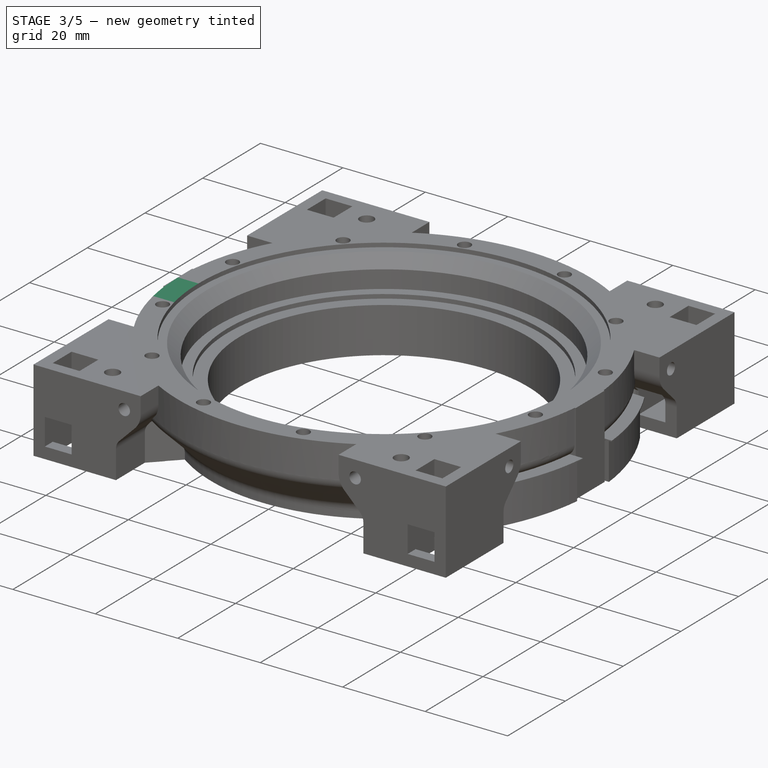
[diagram: stage 3 of 5 — iso view after this stage's code; geometry added in this stage tinted green]
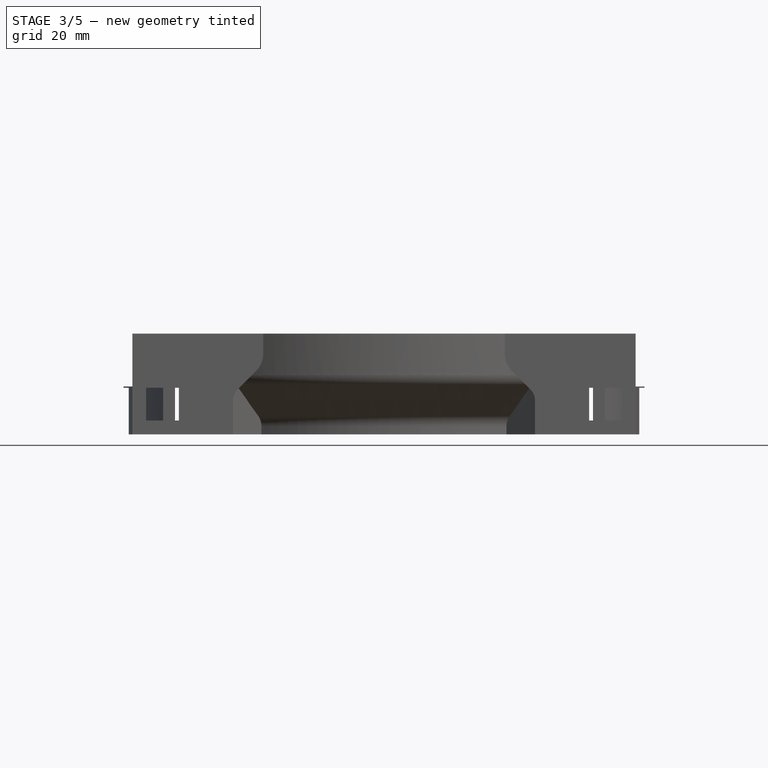
[diagram: stage 3 of 5 — front view after this stage's code; geometry added in this stage tinted green]
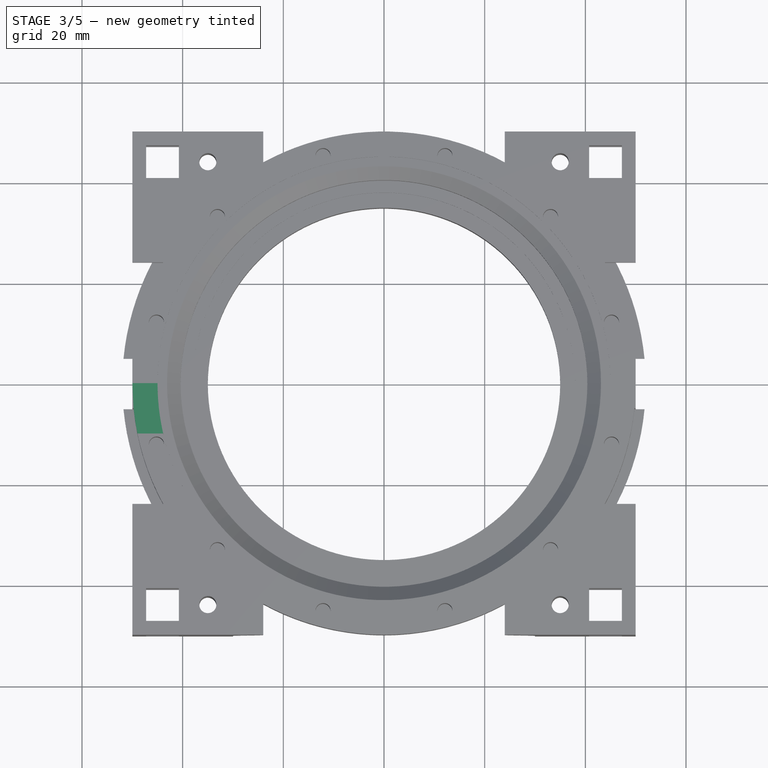
[diagram: stage 3 of 5 — top view after this stage's code; geometry added in this stage tinted green]
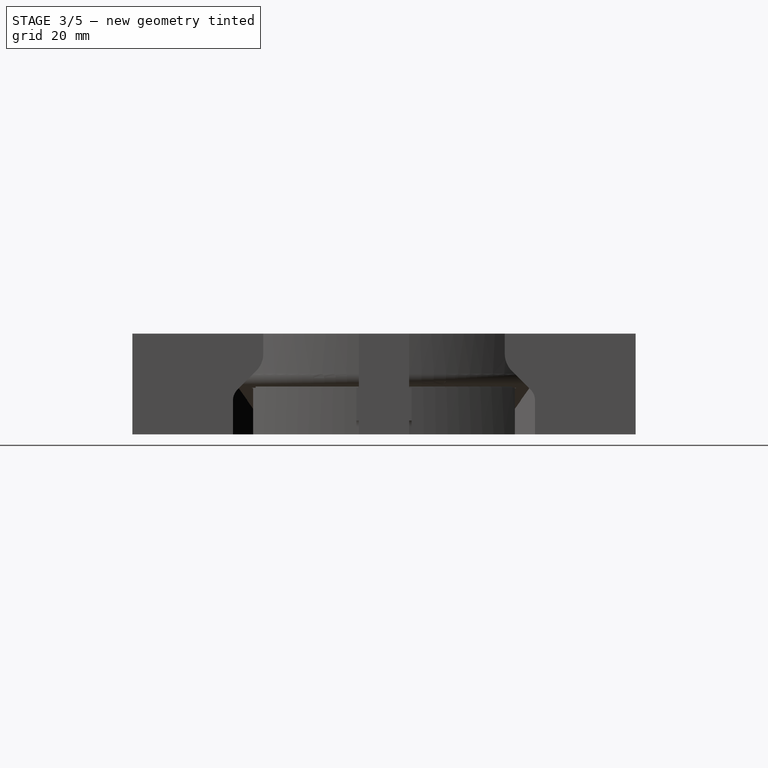
[diagram: stage 3 of 5 — right view after this stage's code; geometry added in this stage tinted green]
FEATURE [Sketcher::SketchObject] Sketch045
  Placement = pos=(0,0,18.25) rot=(1,0,0;3.14159rad)
  Support = -> PolarPattern007 [Face372]
  sketch-geometry (8):
    g0: LineSegment StartX=-50 StartY=5.57622 StartZ=0 EndX=-48.7 EndY=5.57622 EndZ=0
    g1: LineSegment StartX=-48.7 StartY=5.57622 StartZ=0 EndX=-48.7 EndY=4.94622 EndZ=0
    g2: LineSegment StartX=-48.7 StartY=4.94622 StartZ=0 EndX=-50 EndY=4.94622 EndZ=0
    g3: LineSegment StartX=-50 StartY=4.94622 StartZ=0 EndX=-50 EndY=5.57622 EndZ=0
    g4: LineSegment StartX=-50 StartY=-4.94622 StartZ=0 EndX=-48.7 EndY=-4.94622 EndZ=0
    g5: LineSegment StartX=-48.7 StartY=-4.94622 StartZ=0 EndX=-48.7 EndY=-5.57622 EndZ=0
    g6: LineSegment StartX=-48.7 StartY=-5.57622 StartZ=0 EndX=-50 EndY=-5.57622 EndZ=0
    g7: LineSegment StartX=-50 StartY=-5.57622 StartZ=0 EndX=-50 EndY=-4.94622 EndZ=0
  constraints (22):
    c: Coincident(g0,g1)
    c: Coincident(g1,g2)
    c: Coincident(g2,g3)
    c: Coincident(g3,g0)
    c: Horizontal(g0)
    c: Horizontal(g2)
    c: Vertical(g1)
    c: Vertical(g3)
    c: DistanceX(g1,g-1) = 48.7
    c: DistanceY(g-1,g0) = 5.57622
    c: DistanceY(g2,g0) = 0.63
    c: DistanceX(g2,g1) = 1.3
    c: Coincident(g4,g5)
    c: Coincident(g5,g6)
    c: Coincident(g6,g7)
    c: Coincident(g7,g4)
    c: Horizontal(g4)
    c: Horizontal(g6)
    c: Vertical(g5)
    c: Vertical(g7)
    c: Symmetric(g5,g0,g-1)
    c: Symmetric(g4,g2,g-1)
FEATURE [PartDesign::Pad] Pad021
  Length = 0.25
  Length2 = 100
  Placement = pos=(0,0,0) rot=(1,0,0;1.5708rad)
  Sketch = -> Sketch045
  Type = 0
FEATURE [PartDesign::PolarPattern] PolarPattern008
  Angle = 360
  Axis = -> Sketch045 [N_Axis]
  Occurrences = 2
  Originals = -> [Pad021]
  Placement = pos=(0,0,0) rot=(1,0,0;1.5708rad)
FEATURE [Sketcher::SketchObject] Sketch033  label="Motor Mount Holes"
  Placement = pos=(0,0,9) rot=(1,0,0;3.14159rad)
  Support = -> PolarPattern008 [Face18]
  sketch-geometry (9):
    g0: LineSegment [constr] StartX=-30 StartY=30 StartZ=0 EndX=30 EndY=30 EndZ=0
    g1: LineSegment [constr] StartX=30 StartY=30 StartZ=0 EndX=30 EndY=-30 EndZ=0
    g2: LineSegment [constr] StartX=30 StartY=-30 StartZ=0 EndX=-30 EndY=-30 EndZ=0
    g3: LineSegment [constr] StartX=-30 StartY=-30 StartZ=0 EndX=-30 EndY=30 EndZ=0
    g4: Circle CenterX=30 CenterY=-30 CenterZ=0 NormalX=0 NormalY=0 NormalZ=1 Radius=1.5
    g5: Circle CenterX=-30 CenterY=-30 CenterZ=0 NormalX=0 NormalY=0 NormalZ=1 Radius=1.5
    g6: Circle CenterX=-30 CenterY=30 CenterZ=0 NormalX=0 NormalY=0 NormalZ=1 Radius=1.5
    g7: Circle CenterX=30 CenterY=30 CenterZ=0 NormalX=0 NormalY=0 NormalZ=1 Radius=1.5
    g8: Circle CenterX=0 CenterY=0 CenterZ=0 NormalX=0 NormalY=0 NormalZ=1 Radius=34
  constraints (21):
    c: Coincident(g0,g1)
    c: Coincident(g1,g2)
    c: Coincident(g2,g3)
    c: Coincident(g3,g0)
    c: Horizontal(g0)
    c: Horizontal(g2)
    c: Vertical(g1)
    c: Vertical(g3)
    c: Symmetric(g2,g0,g-1)
    c: Equal(g2,g1)
    c: DistanceY(g1,g0) = 60
    c: Coincident(g4,g1)
    c: Coincident(g5,g2)
    c: Coincident(g6,g0)
    c: Coincident(g7,g0)
    c: Radius(g7) = 1.5
    c: Equal(g7,g4)
    c: Equal(g7,g5)
    c: Equal(g7,g6)
    c: Coincident(g8,g-1)
    c: Radius(g8) = 34
FEATURE [PartDesign::Pocket] Pocket004
  Length = 12
  Placement = pos=(0,0,0) rot=(1,0,0;1.5708rad)
  Sketch = -> Sketch033
  Type = 0
FEATURE [Sketcher::SketchObject] Sketch040  label="CutRefPad"
  Placement = pos=(0,-50,0) rot=(1,0,0;1.5708rad)
  Support = -> Pocket004 [Face197]
  sketch-geometry (4):
    g0: LineSegment StartX=-55 StartY=49 StartZ=0 EndX=55 EndY=49 EndZ=0
    g1: LineSegment StartX=55 StartY=49 StartZ=0 EndX=55 EndY=29 EndZ=0
    g2: LineSegment StartX=55 StartY=29 StartZ=0 EndX=-55 EndY=29 EndZ=0
    g3: LineSegment StartX=-55 StartY=29 StartZ=0 EndX=-55 EndY=49 EndZ=0
  constraints (12):
    c: Coincident(g0,g1)
    c: Coincident(g1,g2)
    c: Coincident(g2,g3)
    c: Coincident(g3,g0)
    c: Horizontal(g0)
    c: Horizontal(g2)
    c: Vertical(g1)
    c: Vertical(g3)
    c: DistanceY(g-1,g1) = 29
    c: Symmetric(g1,g2,g-2)
    c: DistanceX(g0,g0) = 110
    c: DistanceY(g2,g0) = 20
FEATURE [PartDesign::Pocket] Pocket005
  Length = 5
  Placement = pos=(0,0,0) rot=(1,0,0;1.5708rad)
  Sketch = -> Sketch040
  Type = 1
FEATURE [PartDesign::Fillet] Fillet
  Base = -> Pocket005 [Edge391]
  Placement = pos=(0,0,0) rot=(1,0,0;1.5708rad)
  Radius = 3
FEATURE [PartDesign::Fillet] Fillet001
  Base = -> Fillet [Edge104]
  Placement = pos=(0,0,0) rot=(1,0,0;1.5708rad)
  Radius = 3
FEATURE [PartDesign::Fillet] Fillet002
  Base = -> Fillet001 [Edge319]
  Placement = pos=(0,0,0) rot=(1,0,0;1.5708rad)
  Radius = 3
FEATURE [PartDesign::Fillet] Fillet003
  Base = -> Fillet002 [Edge529]
  Placement = pos=(0,0,0) rot=(1,0,0;1.5708rad)
  Radius = 3
FEATURE [PartDesign::Fillet] Fillet004
  Base = -> Fillet003 [Edge326]
  Placement = pos=(0,0,0) rot=(1,0,0;1.5708rad)
  Radius = 3
FEATURE [PartDesign::Fillet] Fillet005
  Base = -> Fillet004 [Edge216]
  Placement = pos=(0,0,0) rot=(1,0,0;1.5708rad)
  Radius = 3
FEATURE [PartDesign::Fillet] Fillet006
  Base = -> Fillet005 [Edge97]
  Placement = pos=(0,0,0) rot=(1,0,0;1.5708rad)
  Radius = 3
FEATURE [PartDesign::Fillet] Fillet007
  Base = -> Fillet006 [Edge453]
  Placement = pos=(0,0,0) rot=(1,0,0;1.5708rad)
  Radius = 3
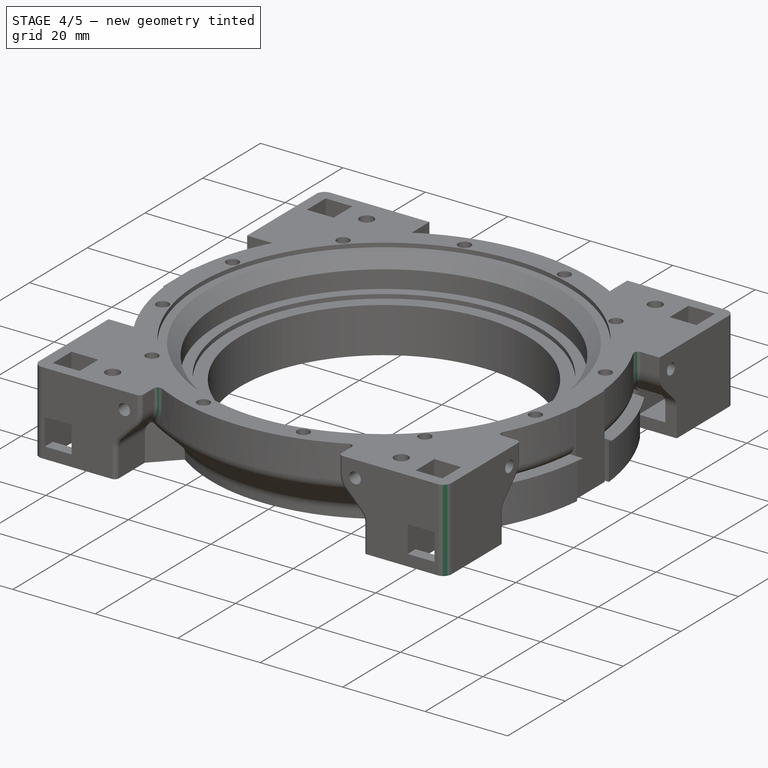
[diagram: stage 4 of 5 — iso view after this stage's code; geometry added in this stage tinted green]
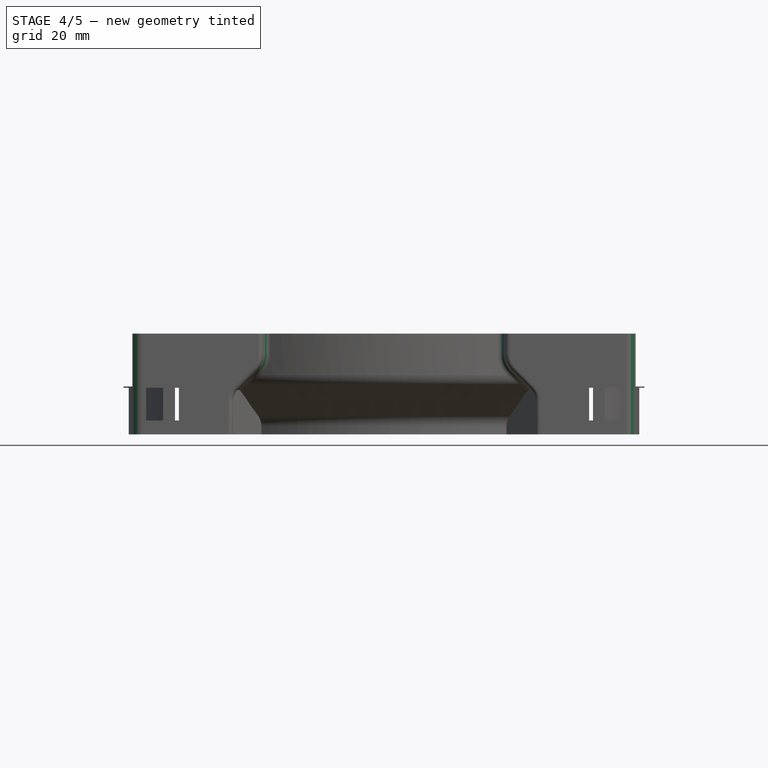
[diagram: stage 4 of 5 — front view after this stage's code; geometry added in this stage tinted green]
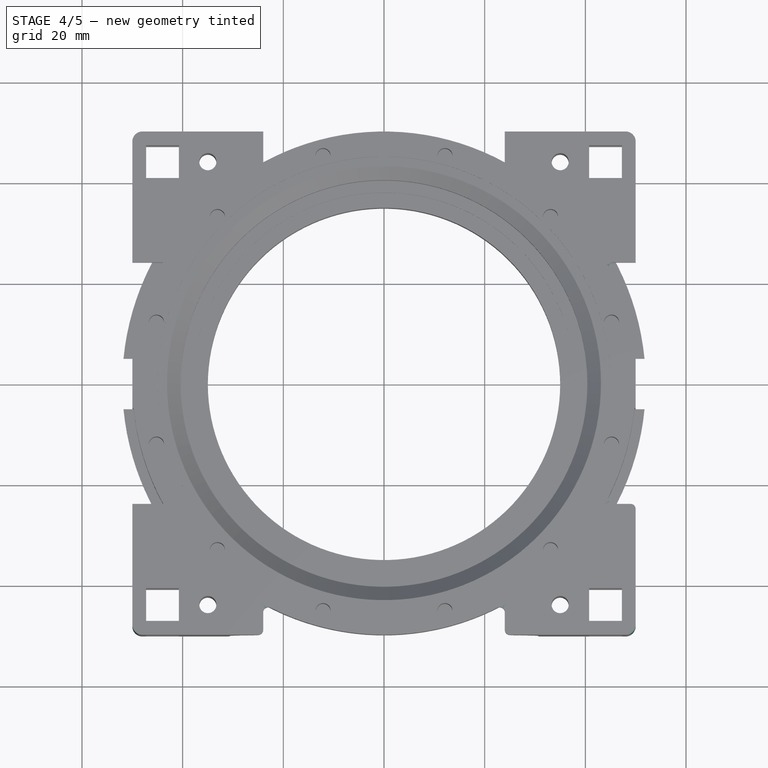
[diagram: stage 4 of 5 — top view after this stage's code; geometry added in this stage tinted green]
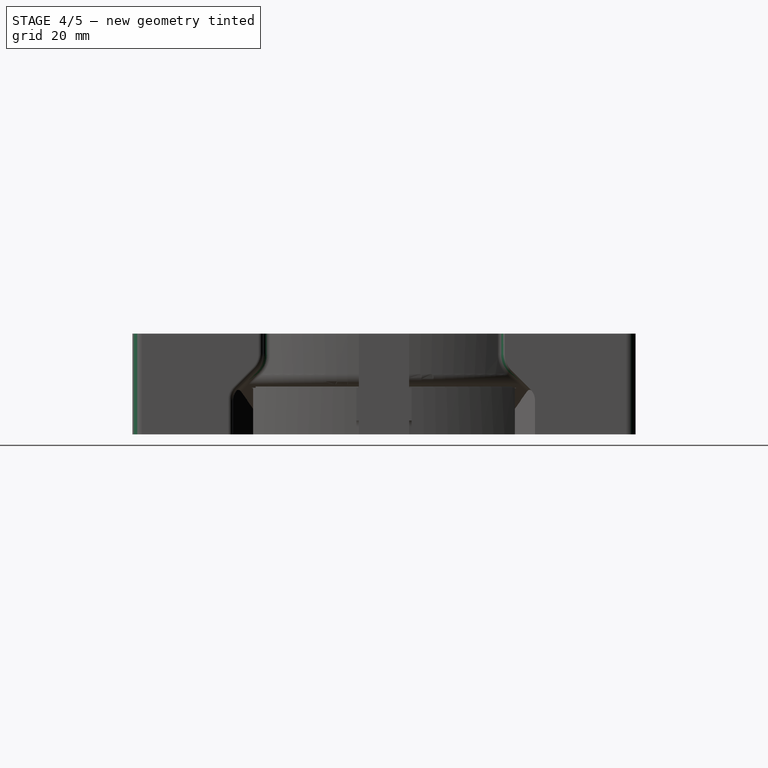
[diagram: stage 4 of 5 — right view after this stage's code; geometry added in this stage tinted green]
FEATURE [PartDesign::Fillet] Fillet008
  Base = -> Fillet007 [Edge676]
  Placement = pos=(0,0,0) rot=(1,0,0;1.5708rad)
  Radius = 2
FEATURE [PartDesign::Fillet] Fillet009
  Base = -> Fillet008 [Edge553]
  Placement = pos=(0,0,0) rot=(1,0,0;1.5708rad)
  Radius = 2
FEATURE [PartDesign::Fillet] Fillet010
  Base = -> Fillet009 [Edge1034]
  Placement = pos=(0,0,0) rot=(1,0,0;1.5708rad)
  Radius = 2
FEATURE [PartDesign::Fillet] Fillet011
  Base = -> Fillet010 [Edge534]
  Placement = pos=(0,0,0) rot=(1,0,0;1.5708rad)
  Radius = 2
FEATURE [PartDesign::Fillet] Fillet012
  Base = -> Fillet011 [Edge773]
  Placement = pos=(0,0,0) rot=(1,0,0;1.5708rad)
  Radius = 1
FEATURE [PartDesign::Fillet] Fillet013
  Base = -> Fillet012 [Edge3]
  Placement = pos=(0,0,0) rot=(1,0,0;1.5708rad)
  Radius = 1
FEATURE [PartDesign::Fillet] Fillet014
  Base = -> Fillet013 [Edge167]
  Placement = pos=(0,0,0) rot=(1,0,0;1.5708rad)
  Radius = 1
FEATURE [PartDesign::Fillet] Fillet015
  Base = -> Fillet014 [Edge3]
  Placement = pos=(0,0,0) rot=(1,0,0;1.5708rad)
  Radius = 1
FEATURE [PartDesign::Fillet] Fillet016
  Base = -> Fillet015 [Edge215]
  Placement = pos=(0,0,0) rot=(1,0,0;1.5708rad)
  Radius = 1
FEATURE [PartDesign::Fillet] Fillet017
  Base = -> Fillet016 [Edge184]
  Placement = pos=(0,0,0) rot=(1,0,0;1.5708rad)
  Radius = 1
FEATURE [PartDesign::Fillet] Fillet018
  Base = -> Fillet017 [Edge580]
  Placement = pos=(0,0,0) rot=(1,0,0;1.5708rad)
  Radius = 1
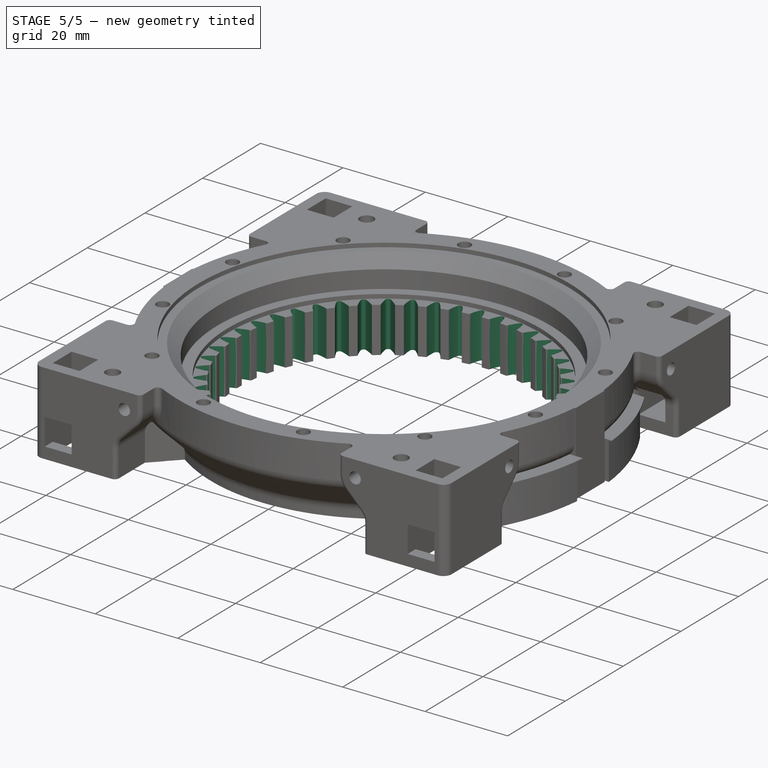
[diagram: stage 5 of 5 — iso view after this stage's code; geometry added in this stage tinted green]
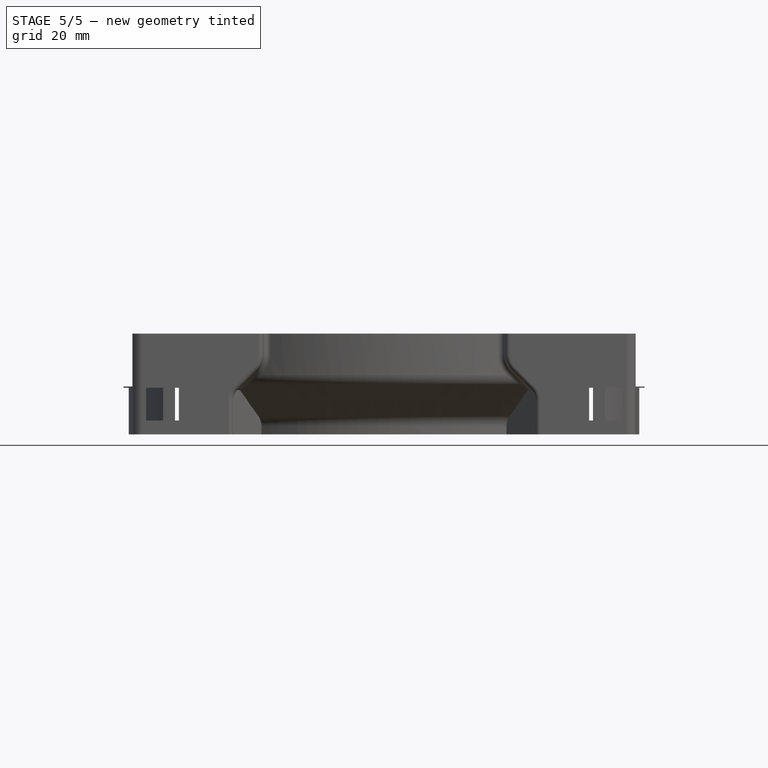
[diagram: stage 5 of 5 — front view after this stage's code; geometry added in this stage tinted green]
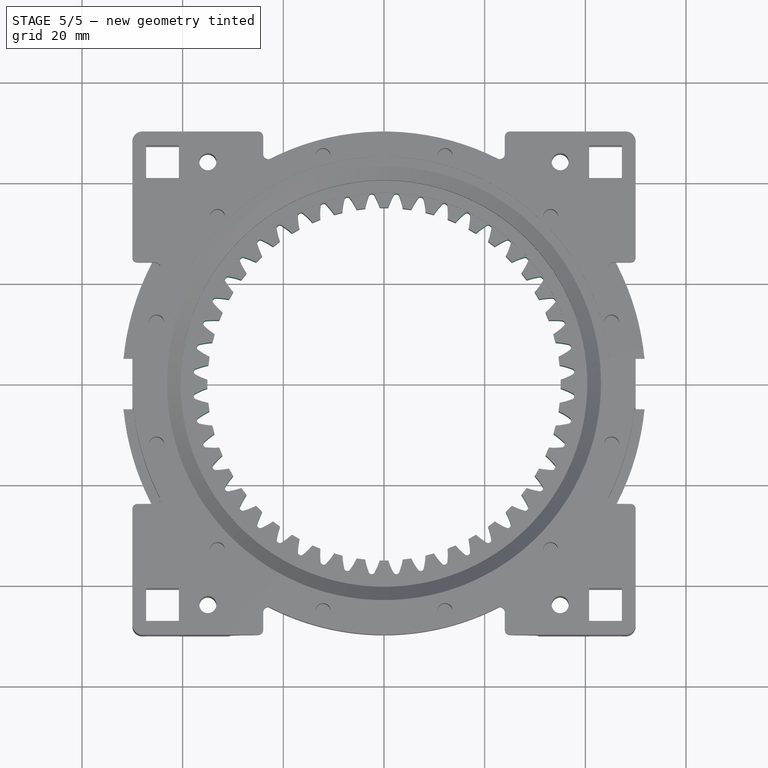
[diagram: stage 5 of 5 — top view after this stage's code; geometry added in this stage tinted green]
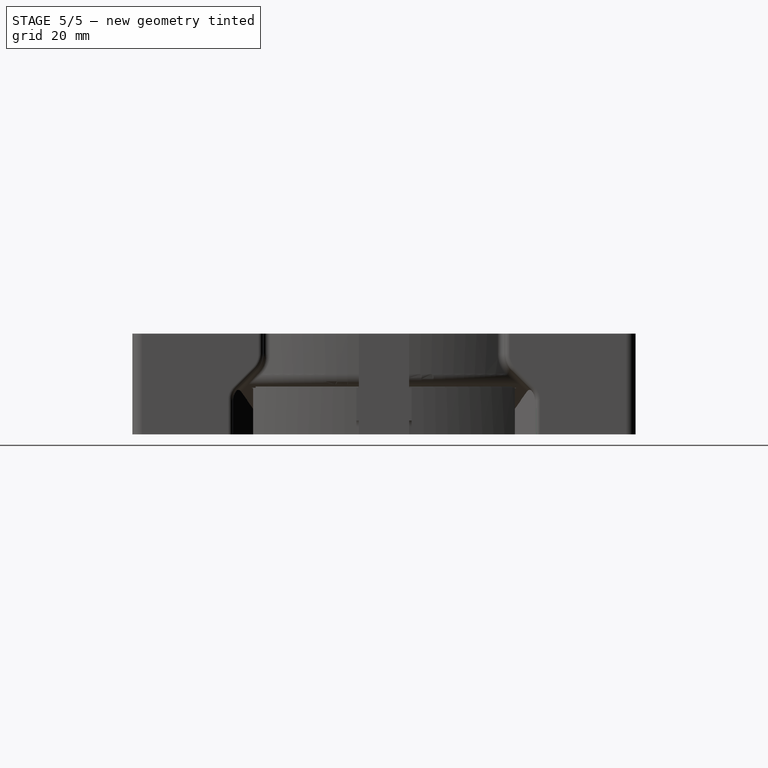
[diagram: stage 5 of 5 — right view after this stage's code; geometry added in this stage tinted green]
FEATURE [Part::Part2DObjectPython] InvoluteGear004  # Draft 2D object (typed FeaturePython)
  ExternalGear = true
  HighPrecision = true
  Modules = 1.5
  NumberOfTeeth = 18
  PressureAngle = 20
FEATURE [PartDesign::Pad] Pad013  label="GearPad"
  Length = 15
  Length2 = 10
  Placement = pos=(0,0,8) rot=(0,0,1;0rad)
  Sketch = -> InvoluteGear004
  Type = 0
FEATURE [PartDesign::Fillet] Fillet019
  Base = -> Fillet018 [Edge187]
  Placement = pos=(0,0,0) rot=(1,0,0;1.5708rad)
  Radius = 1
FEATURE [PartDesign::Fillet] Fillet020
  Base = -> Fillet019 [Edge302]
  Placement = pos=(0,0,0) rot=(1,0,0;1.5708rad)
  Radius = 1
FEATURE [PartDesign::Fillet] Fillet021
  Base = -> Fillet020 [Edge200]
  Placement = pos=(0,0,0) rot=(1,0,0;1.5708rad)
  Radius = 1
FEATURE [PartDesign::Fillet] Fillet022
  Base = -> Fillet021 [Edge130]
  Placement = pos=(0,0,0) rot=(1,0,0;1.5708rad)
  Radius = 1
FEATURE [PartDesign::Fillet] Fillet023
  Base = -> Fillet022 [Edge160]
  Placement = pos=(0,0,0) rot=(1,0,0;1.5708rad)
  Radius = 1
FEATURE [PartDesign::Fillet] Fillet024
  Base = -> Fillet023 [Edge302]
  Placement = pos=(0,0,0) rot=(1,0,0;1.5708rad)
  Radius = 1
FEATURE [PartDesign::Fillet] Fillet025
  Base = -> Fillet024 [Edge60]
  Placement = pos=(0,0,0) rot=(1,0,0;1.5708rad)
  Radius = 1
FEATURE [PartDesign::Fillet] Fillet026
  Base = -> Fillet025 [Edge643]
  Placement = pos=(0,0,0) rot=(1,0,0;1.5708rad)
  Radius = 1
FEATURE [PartDesign::Fillet] Fillet027
  Base = -> Fillet026 [Edge191]
  Placement = pos=(0,0,0) rot=(1,0,0;1.5708rad)
  Radius = 1
FEATURE [Part::Cut] Cut
  Base = -> Fillet027
  Tool = -> Pad013
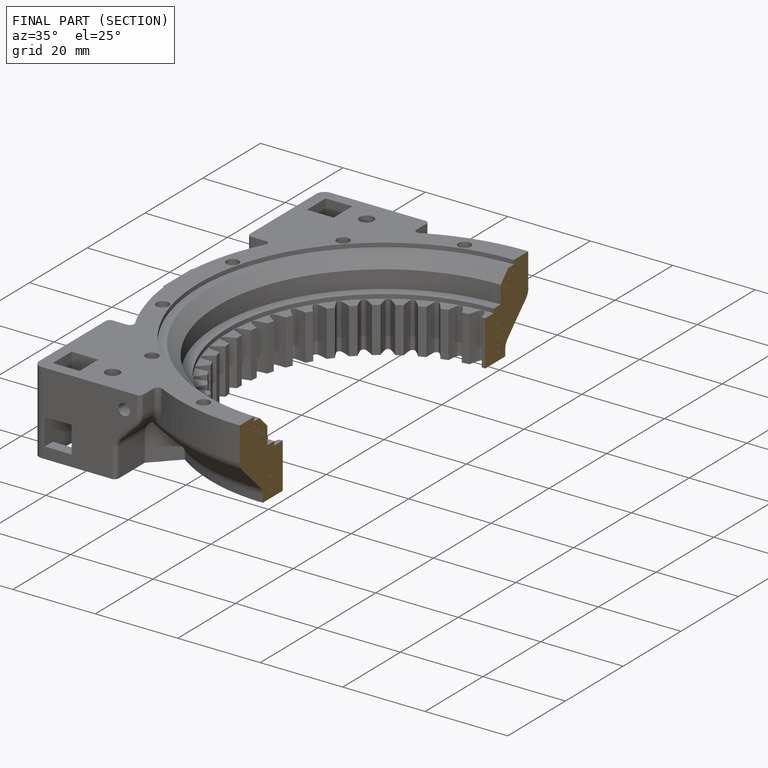
[diagram: finished part — half-section view (interior)]
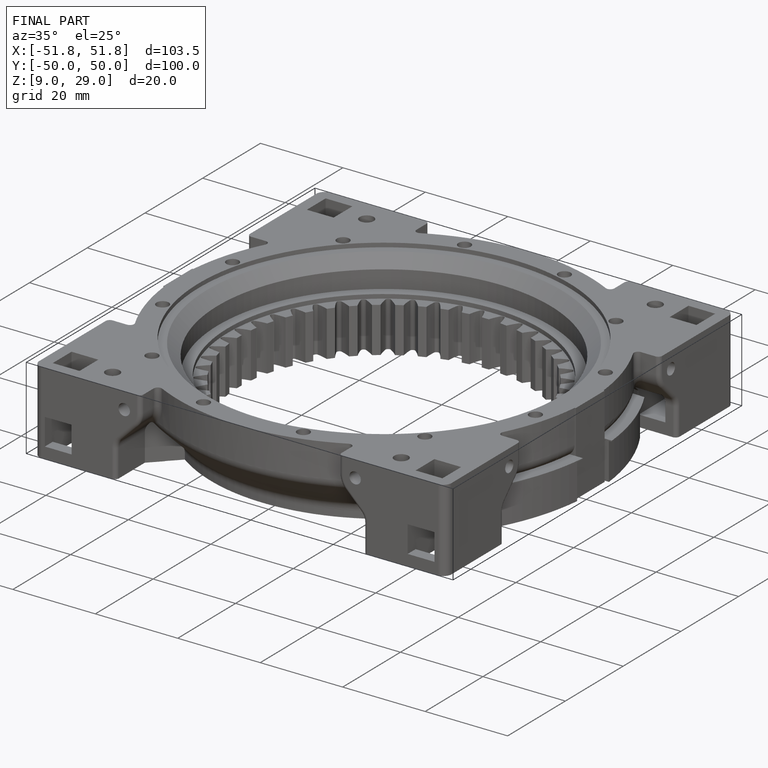
[diagram: finished part — iso view with bounding-box wireframe]
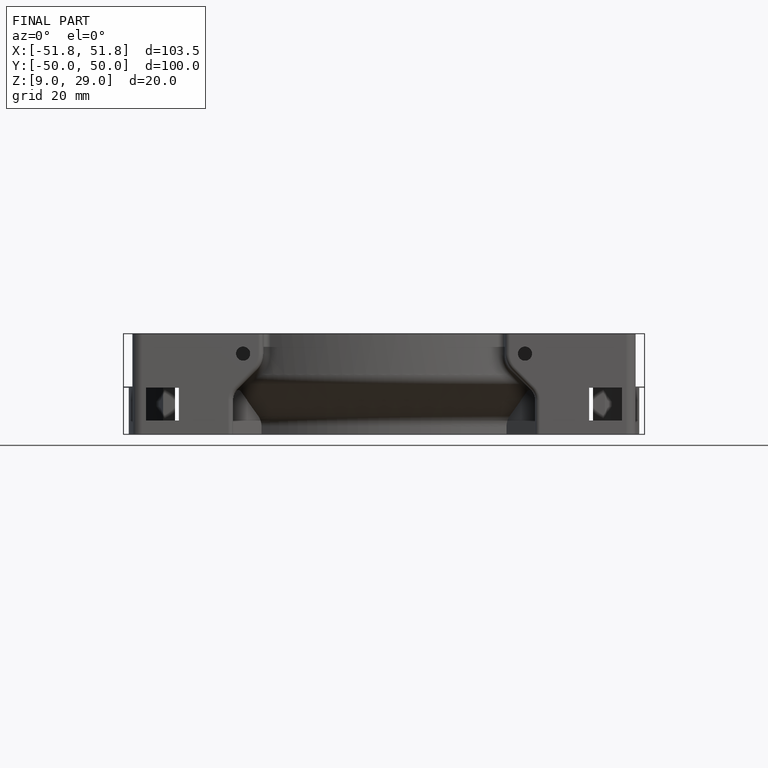
[diagram: finished part — front view with bounding-box wireframe]
